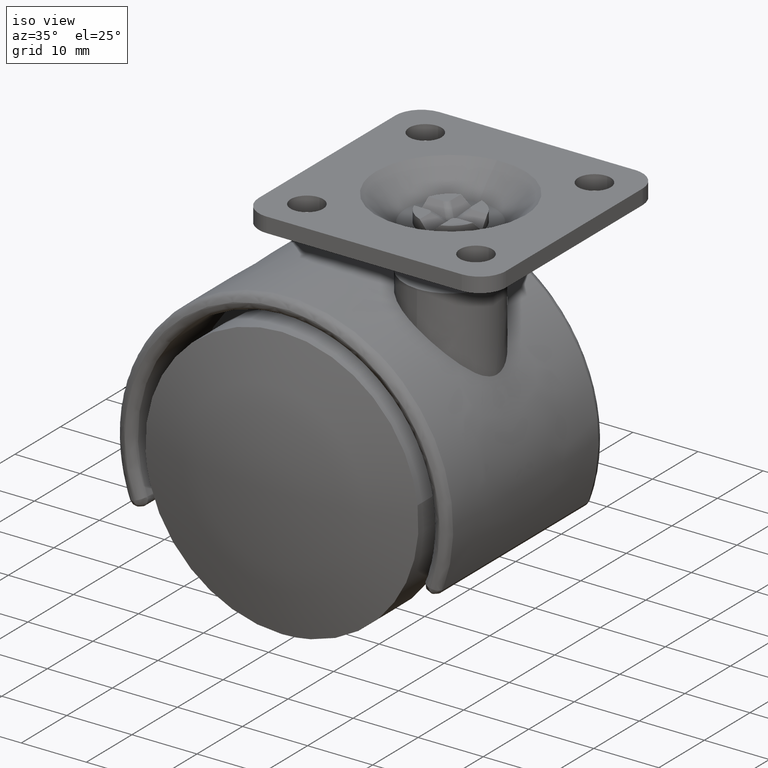
[diagram: clean part render]
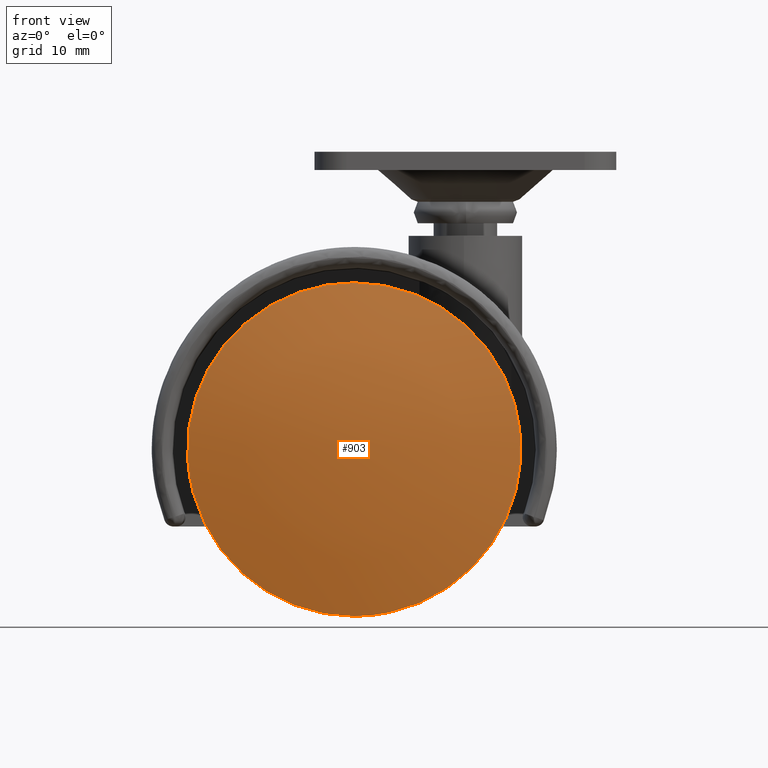
[diagram: tour spotlight — one face highlighted and labeled with its STEP entity id]
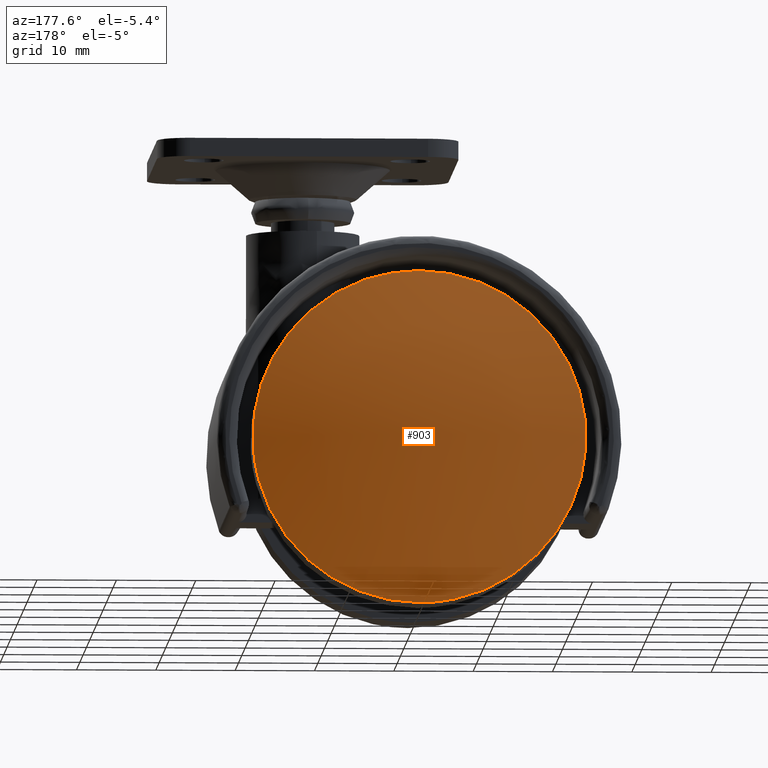
[diagram: tour spotlight — one face highlighted and labeled with its STEP entity id]
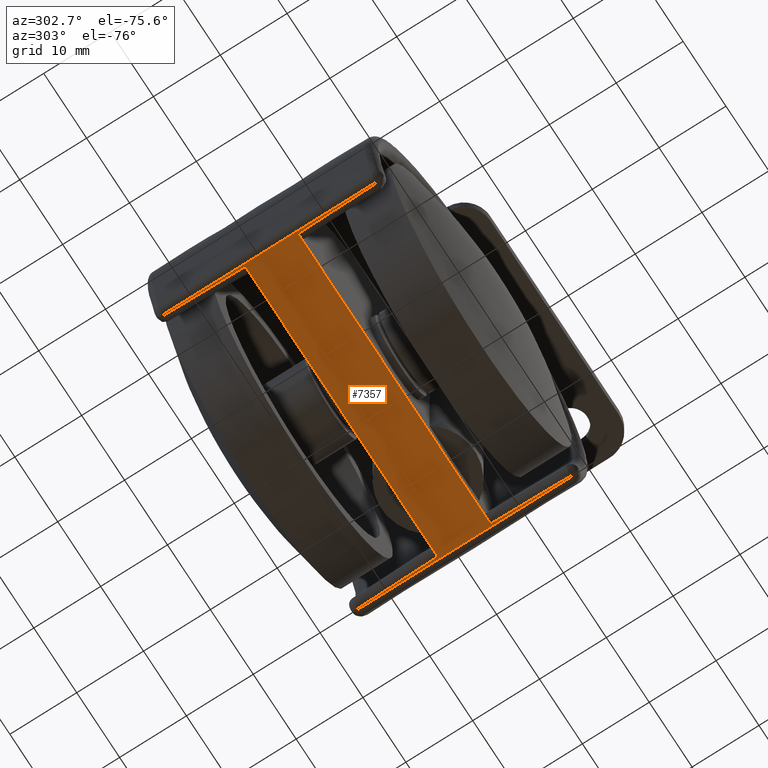
[diagram: tour spotlight — one face highlighted and labeled with its STEP entity id]
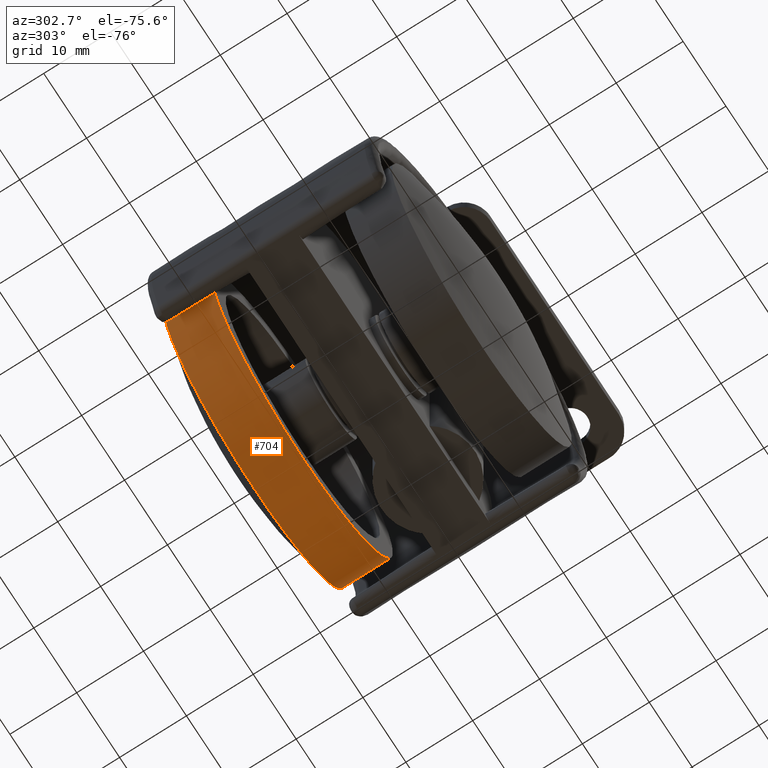
[diagram: tour spotlight — one face highlighted and labeled with its STEP entity id]
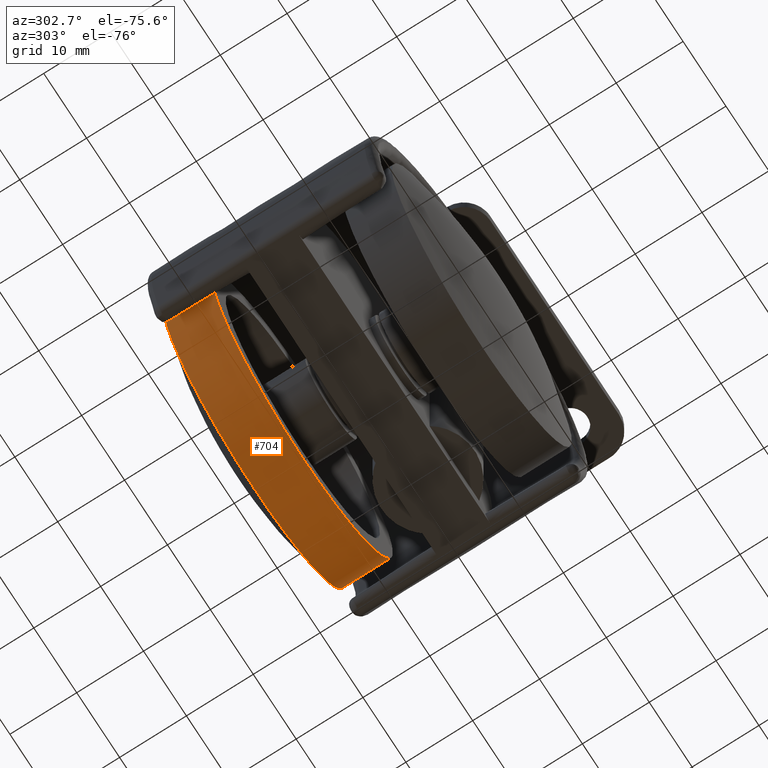
[diagram: tour spotlight — one face highlighted and labeled with its STEP entity id]
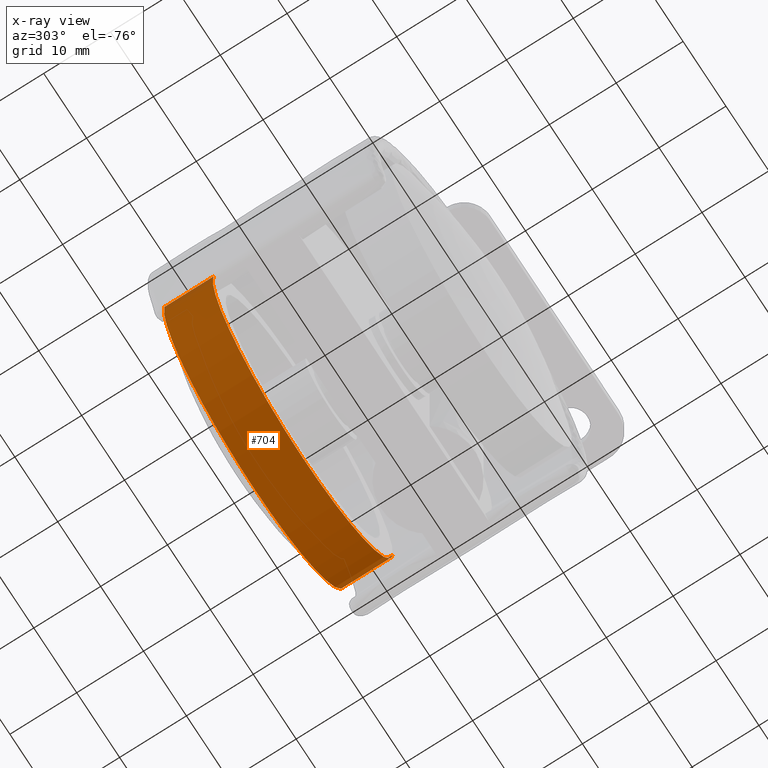
[diagram: x-ray of the same camera — body ghosted, this tour face saturated]
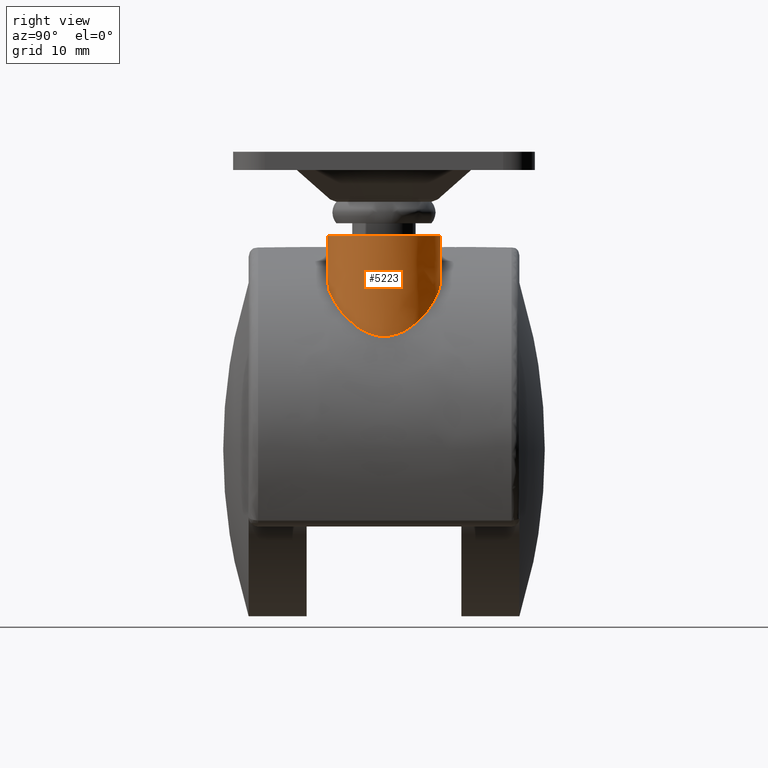
[diagram: tour spotlight — one face highlighted and labeled with its STEP entity id]
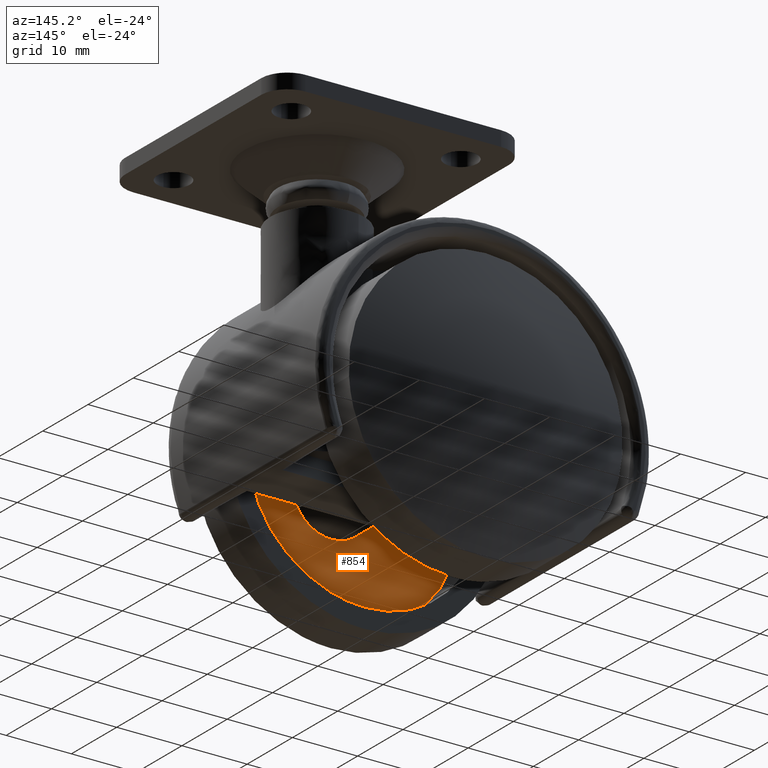
[diagram: tour spotlight — one face highlighted and labeled with its STEP entity id]
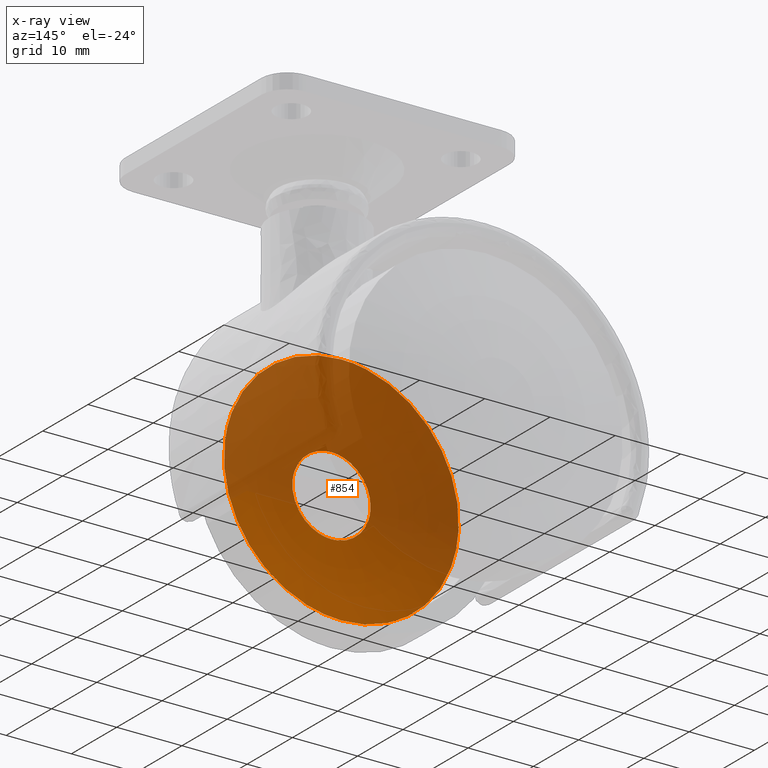
[diagram: x-ray of the same camera — body ghosted, this tour face saturated]
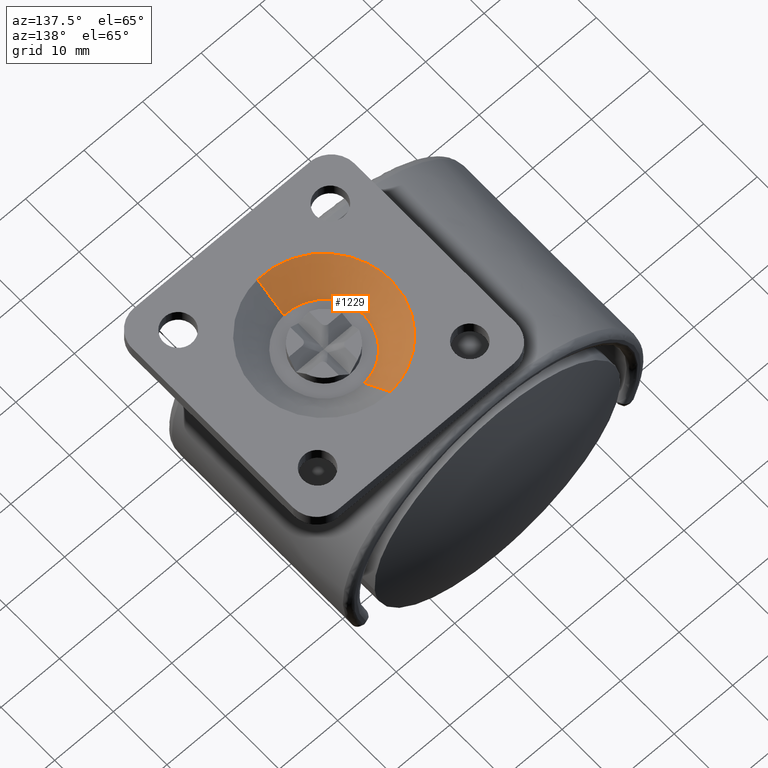
[diagram: tour spotlight — one face highlighted and labeled with its STEP entity id]
A machine part: a face-by-face anatomy tour. The part has 130 B-rep faces; the first image is the clean iso view, then the 8 largest visible faces are spotlighted one at a time (largest first), each with its STEP entity span.

Face 1 — front view, entity #903. In plain terms, the highlighted face is a freeform B-spline surface patch.
Definition (entity closure, byte-faithful):
#643=CARTESIAN_POINT('',(20.853201943632900,-17.050000000000001,2.478703027352907));
#644=VERTEX_POINT('',#643);
#650=CARTESIAN_POINT('',(0.0,-17.050000000000001,-21.0));
#651=VERTEX_POINT('',#650);
#652=CARTESIAN_POINT('',(20.853201943632904,-17.050000000000008,2.478703027352907));
#653=CARTESIAN_POINT('',(21.000000000000007,-17.049999999999997,1.243698478422807));
#654=CARTESIAN_POINT('',(21.0,-17.050000000000001,0.0));
#655=CARTESIAN_POINT('',(21.000000000000007,-17.050000000000008,-21.000000000000007));
#656=CARTESIAN_POINT('',(0.0,-17.050000000000001,-21.0));
#664=(BOUNDED_CURVE()B_SPLINE_CURVE(2,(#652,#653,#654,#655,#656),.UNSPECIFIED.,.F.,.U.)B_SPLINE_CURVE_WITH_KNOTS((3,2,3),(0.229562602379606,0.250000000000000,0.500000000000000),.UNSPECIFIED.)CURVE()GEOMETRIC_REPRESENTATION_ITEM()RATIONAL_B_SPLINE_CURVE((0.956027006766681,0.976056099307170,1.0,0.707106781186547,1.0))REPRESENTATION_ITEM(''));
#665=EDGE_CURVE('',#644,#651,#664,.T.);
#667=CARTESIAN_POINT('',(-20.960832033212970,-17.050000000000001,-1.281998625195331));
#668=VERTEX_POINT('',#667);
#669=CARTESIAN_POINT('',(0.0,-17.050000000000001,-21.0));
#670=CARTESIAN_POINT('',(-19.754846955243273,-17.050000000000001,-21.0));
#671=CARTESIAN_POINT('',(-20.960832033212970,-17.049999999999997,-1.281998625195331));
#679=(BOUNDED_CURVE()B_SPLINE_CURVE(2,(#669,#670,#671),.UNSPECIFIED.,.F.,.U.)B_SPLINE_CURVE_WITH_KNOTS((3,3),(0.500000000000000,0.739333132683117),.UNSPECIFIED.)CURVE()GEOMETRIC_REPRESENTATION_ITEM()RATIONAL_B_SPLINE_CURVE((1.0,0.719603793598940,0.976072406961299))REPRESENTATION_ITEM(''));
#680=EDGE_CURVE('',#651,#668,#679,.T.);
#754=CARTESIAN_POINT('',(0.0,-17.050000000000001,21.0));
#755=VERTEX_POINT('',#754);
#756=CARTESIAN_POINT('',(-20.960832033212970,-17.049999999999997,-1.281998625195331));
#757=CARTESIAN_POINT('',(-21.000000000000004,-17.050000000000004,-0.641597647725365));
#758=CARTESIAN_POINT('',(-21.0,-17.050000000000001,0.0));
#759=CARTESIAN_POINT('',(-21.000000000000007,-17.050000000000008,21.000000000000007));
#760=CARTESIAN_POINT('',(0.0,-17.050000000000001,21.0));
#768=(BOUNDED_CURVE()B_SPLINE_CURVE(2,(#756,#757,#758,#759,#760),.UNSPECIFIED.,.F.,.U.)B_SPLINE_CURVE_WITH_KNOTS((3,2,3),(0.739333132683117,0.750000000000000,1.0),.UNSPECIFIED.)CURVE()GEOMETRIC_REPRESENTATION_ITEM()RATIONAL_B_SPLINE_CURVE((0.976072406961299,0.987502987587608,1.0,0.707106781186547,1.0))REPRESENTATION_ITEM(''));
#769=EDGE_CURVE('',#668,#755,#768,.T.);
#771=CARTESIAN_POINT('',(0.0,-17.050000000000001,21.0));
#772=CARTESIAN_POINT('',(18.651679366881005,-17.049999999999997,20.999999999999996));
#773=CARTESIAN_POINT('',(20.853201943632904,-17.050000000000008,2.478703027352907));
#781=(BOUNDED_CURVE()B_SPLINE_CURVE(2,(#771,#772,#773),.UNSPECIFIED.,.F.,.U.)B_SPLINE_CURVE_WITH_KNOTS((3,3),(0.0,0.229562602379606),.UNSPECIFIED.)CURVE()GEOMETRIC_REPRESENTATION_ITEM()RATIONAL_B_SPLINE_CURVE((1.0,0.731050681879377,0.956027006766681))REPRESENTATION_ITEM(''));
#782=EDGE_CURVE('',#755,#644,#781,.T.);
#873=CARTESIAN_POINT('',(-22.376576410867681,-12.749200742959554,-22.377070716865443));
#874=CARTESIAN_POINT('',(-11.493977828266647,-16.397045765762865,-22.988463468101436));
#875=CARTESIAN_POINT('',(11.494040600958824,-16.397045765762865,-22.988463468101436));
#876=CARTESIAN_POINT('',(22.376692116927035,-12.749161958198069,-22.377064216391350));
#877=CARTESIAN_POINT('',(-22.987983406020216,-16.397211335380305,-11.494245609100686));
#878=CARTESIAN_POINT('',(-11.816855614820980,-20.249999999999972,-11.817116653082490));
#879=CARTESIAN_POINT('',(11.816920150863339,-20.249999999999972,-11.817116653082490));
#880=CARTESIAN_POINT('',(22.988102091111351,-16.397170402190429,-11.494242178821240));
#881=CARTESIAN_POINT('',(-22.987983406020216,-16.397211335380305,11.494245363253251));
#882=CARTESIAN_POINT('',(-11.816855614820980,-20.249999999999972,11.817116400329249));
#883=CARTESIAN_POINT('',(11.816920150863339,-20.249999999999972,11.817116400329249));
#884=CARTESIAN_POINT('',(22.988102091111351,-16.397170402190429,11.494241932973878));
#885=CARTESIAN_POINT('',(-22.376576436326488,-12.749200894861735,22.377070263707463));
#886=CARTESIAN_POINT('',(-11.493977841701160,-16.397045926079084,22.988463003276784));
#887=CARTESIAN_POINT('',(11.494040614393409,-16.397045926079084,22.988463003276784));
#888=CARTESIAN_POINT('',(22.376692142385991,-12.749162110100183,22.377063763233522));
#896=(BOUNDED_SURFACE()B_SPLINE_SURFACE(2,2,((#873,#877,#881,#885),(#874,#878,#882,#886),(#875,#879,#883,#887),(#876,#880,#884,#888)),.UNSPECIFIED.,.F.,.F.,.U.)B_SPLINE_SURFACE_WITH_KNOTS((3,1,3),(3,1,3),(14.292887504100801,37.079166179206652,59.865569298267367),(14.292384147644039,37.079166179206638,59.865947723388672),.UNSPECIFIED.)GEOMETRIC_REPRESENTATION_ITEM()RATIONAL_B_SPLINE_SURFACE(((1.056180838198452,1.028089798579401,1.028089798579401,1.056180836996789),(1.028091039619051,1.0,1.0,1.028091038417387),(1.028091039619051,1.0,1.0,1.028091038417387),(1.056181145016009,1.028090105396958,1.028090105396958,1.056181143814345)))REPRESENTATION_ITEM('')SURFACE());
#897=ORIENTED_EDGE('',*,*,#769,.F.);
#898=ORIENTED_EDGE('',*,*,#680,.F.);
#899=ORIENTED_EDGE('',*,*,#665,.F.);
#900=ORIENTED_EDGE('',*,*,#782,.F.);
#901=EDGE_LOOP('',(#897,#898,#899,#900));
#902=FACE_OUTER_BOUND('',#901,.T.);
#903=ADVANCED_FACE('',(#902),#896,.T.);

Face 2 — auxiliary view, entity #903. In plain terms, the highlighted face is a freeform B-spline surface patch.
Definition (entity closure, byte-faithful):
#643=CARTESIAN_POINT('',(20.853201943632900,-17.050000000000001,2.478703027352907));
#644=VERTEX_POINT('',#643);
#650=CARTESIAN_POINT('',(0.0,-17.050000000000001,-21.0));
#651=VERTEX_POINT('',#650);
#652=CARTESIAN_POINT('',(20.853201943632904,-17.050000000000008,2.478703027352907));
#653=CARTESIAN_POINT('',(21.000000000000007,-17.049999999999997,1.243698478422807));
#654=CARTESIAN_POINT('',(21.0,-17.050000000000001,0.0));
#655=CARTESIAN_POINT('',(21.000000000000007,-17.050000000000008,-21.000000000000007));
#656=CARTESIAN_POINT('',(0.0,-17.050000000000001,-21.0));
#664=(BOUNDED_CURVE()B_SPLINE_CURVE(2,(#652,#653,#654,#655,#656),.UNSPECIFIED.,.F.,.U.)B_SPLINE_CURVE_WITH_KNOTS((3,2,3),(0.229562602379606,0.250000000000000,0.500000000000000),.UNSPECIFIED.)CURVE()GEOMETRIC_REPRESENTATION_ITEM()RATIONAL_B_SPLINE_CURVE((0.956027006766681,0.976056099307170,1.0,0.707106781186547,1.0))REPRESENTATION_ITEM(''));
#665=EDGE_CURVE('',#644,#651,#664,.T.);
#667=CARTESIAN_POINT('',(-20.960832033212970,-17.050000000000001,-1.281998625195331));
#668=VERTEX_POINT('',#667);
#669=CARTESIAN_POINT('',(0.0,-17.050000000000001,-21.0));
#670=CARTESIAN_POINT('',(-19.754846955243273,-17.050000000000001,-21.0));
#671=CARTESIAN_POINT('',(-20.960832033212970,-17.049999999999997,-1.281998625195331));
#679=(BOUNDED_CURVE()B_SPLINE_CURVE(2,(#669,#670,#671),.UNSPECIFIED.,.F.,.U.)B_SPLINE_CURVE_WITH_KNOTS((3,3),(0.500000000000000,0.739333132683117),.UNSPECIFIED.)CURVE()GEOMETRIC_REPRESENTATION_ITEM()RATIONAL_B_SPLINE_CURVE((1.0,0.719603793598940,0.976072406961299))REPRESENTATION_ITEM(''));
#680=EDGE_CURVE('',#651,#668,#679,.T.);
#754=CARTESIAN_POINT('',(0.0,-17.050000000000001,21.0));
#755=VERTEX_POINT('',#754);
#756=CARTESIAN_POINT('',(-20.960832033212970,-17.049999999999997,-1.281998625195331));
#757=CARTESIAN_POINT('',(-21.000000000000004,-17.050000000000004,-0.641597647725365));
#758=CARTESIAN_POINT('',(-21.0,-17.050000000000001,0.0));
#759=CARTESIAN_POINT('',(-21.000000000000007,-17.050000000000008,21.000000000000007));
#760=CARTESIAN_POINT('',(0.0,-17.050000000000001,21.0));
#768=(BOUNDED_CURVE()B_SPLINE_CURVE(2,(#756,#757,#758,#759,#760),.UNSPECIFIED.,.F.,.U.)B_SPLINE_CURVE_WITH_KNOTS((3,2,3),(0.739333132683117,0.750000000000000,1.0),.UNSPECIFIED.)CURVE()GEOMETRIC_REPRESENTATION_ITEM()RATIONAL_B_SPLINE_CURVE((0.976072406961299,0.987502987587608,1.0,0.707106781186547,1.0))REPRESENTATION_ITEM(''));
#769=EDGE_CURVE('',#668,#755,#768,.T.);
#771=CARTESIAN_POINT('',(0.0,-17.050000000000001,21.0));
#772=CARTESIAN_POINT('',(18.651679366881005,-17.049999999999997,20.999999999999996));
#773=CARTESIAN_POINT('',(20.853201943632904,-17.050000000000008,2.478703027352907));
#781=(BOUNDED_CURVE()B_SPLINE_CURVE(2,(#771,#772,#773),.UNSPECIFIED.,.F.,.U.)B_SPLINE_CURVE_WITH_KNOTS((3,3),(0.0,0.229562602379606),.UNSPECIFIED.)CURVE()GEOMETRIC_REPRESENTATION_ITEM()RATIONAL_B_SPLINE_CURVE((1.0,0.731050681879377,0.956027006766681))REPRESENTATION_ITEM(''));
#782=EDGE_CURVE('',#755,#644,#781,.T.);
#873=CARTESIAN_POINT('',(-22.376576410867681,-12.749200742959554,-22.377070716865443));
#874=CARTESIAN_POINT('',(-11.493977828266647,-16.397045765762865,-22.988463468101436));
#875=CARTESIAN_POINT('',(11.494040600958824,-16.397045765762865,-22.988463468101436));
#876=CARTESIAN_POINT('',(22.376692116927035,-12.749161958198069,-22.377064216391350));
#877=CARTESIAN_POINT('',(-22.987983406020216,-16.397211335380305,-11.494245609100686));
#878=CARTESIAN_POINT('',(-11.816855614820980,-20.249999999999972,-11.817116653082490));
#879=CARTESIAN_POINT('',(11.816920150863339,-20.249999999999972,-11.817116653082490));
#880=CARTESIAN_POINT('',(22.988102091111351,-16.397170402190429,-11.494242178821240));
#881=CARTESIAN_POINT('',(-22.987983406020216,-16.397211335380305,11.494245363253251));
#882=CARTESIAN_POINT('',(-11.816855614820980,-20.249999999999972,11.817116400329249));
#883=CARTESIAN_POINT('',(11.816920150863339,-20.249999999999972,11.817116400329249));
#884=CARTESIAN_POINT('',(22.988102091111351,-16.397170402190429,11.494241932973878));
#885=CARTESIAN_POINT('',(-22.376576436326488,-12.749200894861735,22.377070263707463));
#886=CARTESIAN_POINT('',(-11.493977841701160,-16.397045926079084,22.988463003276784));
#887=CARTESIAN_POINT('',(11.494040614393409,-16.397045926079084,22.988463003276784));
#888=CARTESIAN_POINT('',(22.376692142385991,-12.749162110100183,22.377063763233522));
#896=(BOUNDED_SURFACE()B_SPLINE_SURFACE(2,2,((#873,#877,#881,#885),(#874,#878,#882,#886),(#875,#879,#883,#887),(#876,#880,#884,#888)),.UNSPECIFIED.,.F.,.F.,.U.)B_SPLINE_SURFACE_WITH_KNOTS((3,1,3),(3,1,3),(14.292887504100801,37.079166179206652,59.865569298267367),(14.292384147644039,37.079166179206638,59.865947723388672),.UNSPECIFIED.)GEOMETRIC_REPRESENTATION_ITEM()RATIONAL_B_SPLINE_SURFACE(((1.056180838198452,1.028089798579401,1.028089798579401,1.056180836996789),(1.028091039619051,1.0,1.0,1.028091038417387),(1.028091039619051,1.0,1.0,1.028091038417387),(1.056181145016009,1.028090105396958,1.028090105396958,1.056181143814345)))REPRESENTATION_ITEM('')SURFACE());
#897=ORIENTED_EDGE('',*,*,#769,.F.);
#898=ORIENTED_EDGE('',*,*,#680,.F.);
#899=ORIENTED_EDGE('',*,*,#665,.F.);
#900=ORIENTED_EDGE('',*,*,#782,.F.);
#901=EDGE_LOOP('',(#897,#898,#899,#900));
#902=FACE_OUTER_BOUND('',#901,.T.);
#903=ADVANCED_FACE('',(#902),#896,.T.);

Face 3 — auxiliary view, entity #7357. In plain terms, the highlighted face is a freeform B-spline surface patch.
Definition (entity closure, byte-faithful):
#5719=CARTESIAN_POINT('',(-22.629304110273399,16.050000000000001,-9.700000000000001));
#5720=VERTEX_POINT('',#5719);
#5799=CARTESIAN_POINT('',(-22.764886307644950,16.050000000000001,-9.700000000000001));
#5800=VERTEX_POINT('',#5799);
#5822=CARTESIAN_POINT('',(-22.764886307644950,16.050000000000001,-9.700000000000001));
#5823=CARTESIAN_POINT('',(-22.629304110273399,16.050000000000001,-9.700000000000001));
#5824=QUASI_UNIFORM_CURVE('',1,(#5822,#5823),.UNSPECIFIED.,.F.,.U.);
#5825=EDGE_CURVE('',#5800,#5720,#5824,.T.);
#6034=CARTESIAN_POINT('',(22.629304110273399,16.050000000000001,-9.700000000000001));
#6035=VERTEX_POINT('',#6034);
#6199=CARTESIAN_POINT('',(22.764886307644950,16.050000000000001,-9.700000000000001));
#6200=VERTEX_POINT('',#6199);
#6214=CARTESIAN_POINT('',(22.629304110273399,16.050000000000001,-9.700000000000001));
#6215=CARTESIAN_POINT('',(22.764886307644950,16.050000000000001,-9.700000000000001));
#6216=QUASI_UNIFORM_CURVE('',1,(#6214,#6215),.UNSPECIFIED.,.F.,.U.);
#6217=EDGE_CURVE('',#6035,#6200,#6216,.T.);
#6333=CARTESIAN_POINT('',(-22.764886307644950,-15.850000000000000,-9.700000000000001));
#6334=VERTEX_POINT('',#6333);
#6378=CARTESIAN_POINT('',(-22.623648998136350,-15.850000000000000,-9.700000000000001));
#6379=VERTEX_POINT('',#6378);
#6401=CARTESIAN_POINT('',(-22.623648998136350,-15.850000000000000,-9.700000000000001));
#6402=CARTESIAN_POINT('',(-22.764886307644950,-15.850000000000000,-9.700000000000001));
#6403=QUASI_UNIFORM_CURVE('',1,(#6401,#6402),.UNSPECIFIED.,.F.,.U.);
#6404=EDGE_CURVE('',#6379,#6334,#6403,.T.);
#6575=CARTESIAN_POINT('',(22.764886307644950,-15.850000000000000,-9.700000000000001));
#6576=VERTEX_POINT('',#6575);
#6705=CARTESIAN_POINT('',(22.623648998136499,-15.850000000000000,-9.700000000000001));
#6706=VERTEX_POINT('',#6705);
#6720=CARTESIAN_POINT('',(22.764886307644950,-15.850000000000000,-9.700000000000001));
#6721=CARTESIAN_POINT('',(22.623648998136499,-15.850000000000000,-9.700000000000001));
#6722=QUASI_UNIFORM_CURVE('',1,(#6720,#6721),.UNSPECIFIED.,.F.,.U.);
#6723=EDGE_CURVE('',#6576,#6706,#6722,.T.);
#6798=CARTESIAN_POINT('',(22.764886307644950,16.050000000000001,-9.700000000000001));
#6799=CARTESIAN_POINT('',(22.764886307644950,-15.850000000000000,-9.700000000000001));
#6800=QUASI_UNIFORM_CURVE('',1,(#6798,#6799),.UNSPECIFIED.,.F.,.U.);
#6801=EDGE_CURVE('',#6200,#6576,#6800,.T.);
#6837=CARTESIAN_POINT('',(22.412655058395149,3.950000000000000,-9.700000000000001));
#6838=VERTEX_POINT('',#6837);
#6839=CARTESIAN_POINT('',(22.412655058395149,3.950000000000000,-9.700000000000001));
#6840=CARTESIAN_POINT('',(22.442309025660830,7.983991599544396,-9.700000000000001));
#6841=CARTESIAN_POINT('',(22.514582693939172,12.017565677171341,-9.700000000000001));
#6842=CARTESIAN_POINT('',(22.629304110273399,16.050000000000001,-9.700000000000001));
#6843=QUASI_UNIFORM_CURVE('',3,(#6839,#6840,#6841,#6842),.UNSPECIFIED.,.F.,.U.);
#6844=EDGE_CURVE('',#6838,#6035,#6843,.T.);
#6896=CARTESIAN_POINT('',(22.412655058395199,-3.949999999999901,-9.700000000000001));
#6897=VERTEX_POINT('',#6896);
#6898=CARTESIAN_POINT('',(22.623648998136499,-15.850000000000000,-9.700000000000001));
#6899=CARTESIAN_POINT('',(22.512204222843138,-11.884198393631550,-9.700000000000001));
#6900=CARTESIAN_POINT('',(22.441818770246460,-7.917299470113857,-9.700000000000001));
#6901=CARTESIAN_POINT('',(22.412655058395199,-3.949999999999901,-9.700000000000001));
#6902=QUASI_UNIFORM_CURVE('',3,(#6898,#6899,#6900,#6901),.UNSPECIFIED.,.F.,.U.);
#6903=EDGE_CURVE('',#6706,#6897,#6902,.T.);
#6965=CARTESIAN_POINT('',(-22.412655058395050,3.950000000000000,-9.700000000000001));
#6966=VERTEX_POINT('',#6965);
#6967=CARTESIAN_POINT('',(-22.629304110273399,16.050000000000001,-9.700000000000001));
#6968=CARTESIAN_POINT('',(-22.514582693939239,12.017565677171341,-9.700000000000001));
#6969=CARTESIAN_POINT('',(-22.442309025660780,7.983991599544396,-9.700000000000001));
#6970=CARTESIAN_POINT('',(-22.412655058395099,3.950000000000000,-9.700000000000001));
#6971=QUASI_UNIFORM_CURVE('',3,(#6967,#6968,#6969,#6970),.UNSPECIFIED.,.F.,.U.);
#6972=EDGE_CURVE('',#5720,#6966,#6971,.T.);
#7028=CARTESIAN_POINT('',(-22.764886307644950,-15.850000000000000,-9.700000000000001));
#7029=CARTESIAN_POINT('',(-22.764886307644950,16.050000000000001,-9.700000000000001));
#7030=QUASI_UNIFORM_CURVE('',1,(#7028,#7029),.UNSPECIFIED.,.F.,.U.);
#7031=EDGE_CURVE('',#6334,#5800,#7030,.T.);
#7073=CARTESIAN_POINT('',(-22.412655058395149,-3.949999999999901,-9.700000000000001));
#7074=VERTEX_POINT('',#7073);
#7075=CARTESIAN_POINT('',(-22.412655058395149,-3.949999999999901,-9.700000000000001));
#7076=CARTESIAN_POINT('',(-22.441818770246510,-7.917299470113855,-9.700000000000001));
#7077=CARTESIAN_POINT('',(-22.512204222843209,-11.884198393631539,-9.700000000000001));
#7078=CARTESIAN_POINT('',(-22.623648998136350,-15.850000000000000,-9.700000000000001));
#7079=QUASI_UNIFORM_CURVE('',3,(#7075,#7076,#7077,#7078),.UNSPECIFIED.,.F.,.U.);
#7080=EDGE_CURVE('',#7074,#6379,#7079,.T.);
#7184=CARTESIAN_POINT('',(-22.412655058395050,3.950000000000000,-9.700000000000001));
#7185=CARTESIAN_POINT('',(22.412655058395149,3.950000000000000,-9.700000000000001));
#7186=QUASI_UNIFORM_CURVE('',1,(#7184,#7185),.UNSPECIFIED.,.F.,.U.);
#7187=EDGE_CURVE('',#6966,#6838,#7186,.T.);
#7224=CARTESIAN_POINT('',(22.412655058395199,-3.949999999999901,-9.700000000000001));
#7225=CARTESIAN_POINT('',(-22.412655058395149,-3.949999999999901,-9.700000000000001));
#7226=QUASI_UNIFORM_CURVE('',1,(#7224,#7225),.UNSPECIFIED.,.F.,.U.);
#7227=EDGE_CURVE('',#6897,#7074,#7226,.T.);
#7338=CARTESIAN_POINT('',(25.039099216335011,-17.443405423111159,-9.700000000000001));
#7339=CARTESIAN_POINT('',(-25.039099623402890,-17.443405423111159,-9.700000000000001));
#7340=CARTESIAN_POINT('',(25.039099216335011,17.643403426653570,-9.700000000000001));
#7341=CARTESIAN_POINT('',(-25.039099623402890,17.643403426653570,-9.700000000000001));
#7342=B_SPLINE_SURFACE_WITH_KNOTS('',1,1,((#7338,#7340),(#7339,#7341)),.UNSPECIFIED.,.F.,.F.,.U.,(2,2),(2,2),(0.0,50.078198839737901),(0.0,35.086808849764729),.UNSPECIFIED.);
#7343=ORIENTED_EDGE('',*,*,#6801,.T.);
#7344=ORIENTED_EDGE('',*,*,#6723,.T.);
#7345=ORIENTED_EDGE('',*,*,#6903,.T.);
#7346=ORIENTED_EDGE('',*,*,#7227,.T.);
#7347=ORIENTED_EDGE('',*,*,#7080,.T.);
#7348=ORIENTED_EDGE('',*,*,#6404,.T.);
#7349=ORIENTED_EDGE('',*,*,#7031,.T.);
#7350=ORIENTED_EDGE('',*,*,#5825,.T.);
#7351=ORIENTED_EDGE('',*,*,#6972,.T.);
#7352=ORIENTED_EDGE('',*,*,#7187,.T.);
#7353=ORIENTED_EDGE('',*,*,#6844,.T.);
#7354=ORIENTED_EDGE('',*,*,#6217,.T.);
#7355=EDGE_LOOP('',(#7343,#7344,#7345,#7346,#7347,#7348,#7349,#7350,#7351,#7352,#7353,#7354));
#7356=FACE_OUTER_BOUND('',#7355,.T.);
#7357=ADVANCED_FACE('',(#7356),#7342,.T.);

Face 4 — auxiliary view, entity #704. In plain terms, the highlighted face is a freeform B-spline surface patch.
Definition (entity closure, byte-faithful):
#602=CARTESIAN_POINT('',(20.853200053636993,-17.232500000000009,2.478718927791928));
#603=CARTESIAN_POINT('',(20.924139924420714,-17.232500000000012,1.881909301397531));
#604=CARTESIAN_POINT('',(20.960830766859200,-17.232500000000009,1.282019330231997));
#605=CARTESIAN_POINT('',(22.242850097091193,-17.232500000000012,-19.678811436627200));
#606=CARTESIAN_POINT('',(1.282019330231997,-17.232500000000009,-20.960830766859200));
#607=CARTESIAN_POINT('',(-19.678811436627200,-17.232500000000012,-22.242850097091193));
#608=CARTESIAN_POINT('',(-20.960830766859200,-17.232500000000009,-1.282019330231997));
#609=CARTESIAN_POINT('',(20.853200053636993,-9.562937499999999,2.478718927791928));
#610=CARTESIAN_POINT('',(20.924139924420714,-9.562937499999999,1.881909301397531));
#611=CARTESIAN_POINT('',(20.960830766859200,-9.562937499999999,1.282019330231997));
#612=CARTESIAN_POINT('',(22.242850097091193,-9.562937499999999,-19.678811436627200));
#613=CARTESIAN_POINT('',(1.282019330231997,-9.562937499999999,-20.960830766859200));
#614=CARTESIAN_POINT('',(-19.678811436627200,-9.562937499999999,-22.242850097091193));
#615=CARTESIAN_POINT('',(-20.960830766859200,-9.562937499999999,-1.282019330231997));
#623=(BOUNDED_SURFACE()B_SPLINE_SURFACE(2,1,((#602,#609),(#603,#610),(#604,#611),(#605,#612),(#606,#613),(#607,#614),(#608,#615)),.UNSPECIFIED.,.F.,.F.,.U.)B_SPLINE_SURFACE_WITH_KNOTS((3,2,2,3),(2,2),(0.0,1.391757569573601,36.185696808913569,70.979636048253539),(0.0,7.669562500000013),.UNSPECIFIED.)GEOMETRIC_REPRESENTATION_ITEM()RATIONAL_B_SPLINE_SURFACE(((0.977505800795127,0.977505800795127),(0.988284271247462,0.988284271247462),(1.0,1.0),(0.707106781186548,0.707106781186548),(1.0,1.0),(0.707106781186548,0.707106781186548),(1.0,1.0)))REPRESENTATION_ITEM('')SURFACE());
#624=CARTESIAN_POINT('',(20.853201967231360,-9.750000000000146,2.478702828818913));
#625=VERTEX_POINT('',#624);
#626=CARTESIAN_POINT('',(0.0,-9.750000000000000,-21.0));
#627=VERTEX_POINT('',#626);
#628=CARTESIAN_POINT('',(20.853201967231367,-9.750000000000146,2.478702828818913));
#629=CARTESIAN_POINT('',(20.999999999999996,-9.750000000000000,1.243698378106394));
#630=CARTESIAN_POINT('',(21.0,-9.750000000000000,0.0));
#631=CARTESIAN_POINT('',(21.000000000000007,-9.750000000000000,-21.000000000000007));
#632=CARTESIAN_POINT('',(0.0,-9.750000000000000,-21.0));
#640=(BOUNDED_CURVE()B_SPLINE_CURVE(2,(#628,#629,#630,#631,#632),.UNSPECIFIED.,.F.,.U.)B_SPLINE_CURVE_WITH_KNOTS((3,2,3),(0.229562603988611,0.250000000000000,0.500000000000000),.UNSPECIFIED.)CURVE()GEOMETRIC_REPRESENTATION_ITEM()RATIONAL_B_SPLINE_CURVE((0.956027009920400,0.976056101192236,1.0,0.707106781186547,1.0))REPRESENTATION_ITEM(''));
#641=EDGE_CURVE('',#625,#627,#640,.T.);
#642=ORIENTED_EDGE('',*,*,#641,.F.);
#643=CARTESIAN_POINT('',(20.853201943632900,-17.050000000000001,2.478703027352907));
#644=VERTEX_POINT('',#643);
#645=CARTESIAN_POINT('',(20.853201943632900,-17.050000000000001,2.478703027352907));
#646=CARTESIAN_POINT('',(20.853201967231360,-9.750000000000146,2.478702828818913));
#647=QUASI_UNIFORM_CURVE('',1,(#645,#646),.UNSPECIFIED.,.F.,.U.);
#648=EDGE_CURVE('',#644,#625,#647,.T.);
#649=ORIENTED_EDGE('',*,*,#648,.F.);
#650=CARTESIAN_POINT('',(0.0,-17.050000000000001,-21.0));
#651=VERTEX_POINT('',#650);
#652=CARTESIAN_POINT('',(20.853201943632904,-17.050000000000008,2.478703027352907));
#653=CARTESIAN_POINT('',(21.000000000000007,-17.049999999999997,1.243698478422807));
#654=CARTESIAN_POINT('',(21.0,-17.050000000000001,0.0));
#655=CARTESIAN_POINT('',(21.000000000000007,-17.050000000000008,-21.000000000000007));
#656=CARTESIAN_POINT('',(0.0,-17.050000000000001,-21.0));
#664=(BOUNDED_CURVE()B_SPLINE_CURVE(2,(#652,#653,#654,#655,#656),.UNSPECIFIED.,.F.,.U.)B_SPLINE_CURVE_WITH_KNOTS((3,2,3),(0.229562602379606,0.250000000000000,0.500000000000000),.UNSPECIFIED.)CURVE()GEOMETRIC_REPRESENTATION_ITEM()RATIONAL_B_SPLINE_CURVE((0.956027006766681,0.976056099307170,1.0,0.707106781186547,1.0))REPRESENTATION_ITEM(''));
#665=EDGE_CURVE('',#644,#651,#664,.T.);
#666=ORIENTED_EDGE('',*,*,#665,.T.);
#667=CARTESIAN_POINT('',(-20.960832033212970,-17.050000000000001,-1.281998625195331));
#668=VERTEX_POINT('',#667);
#669=CARTESIAN_POINT('',(0.0,-17.050000000000001,-21.0));
#670=CARTESIAN_POINT('',(-19.754846955243273,-17.050000000000001,-21.0));
#671=CARTESIAN_POINT('',(-20.960832033212970,-17.049999999999997,-1.281998625195331));
#679=(BOUNDED_CURVE()B_SPLINE_CURVE(2,(#669,#670,#671),.UNSPECIFIED.,.F.,.U.)B_SPLINE_CURVE_WITH_KNOTS((3,3),(0.500000000000000,0.739333132683117),.UNSPECIFIED.)CURVE()GEOMETRIC_REPRESENTATION_ITEM()RATIONAL_B_SPLINE_CURVE((1.0,0.719603793598940,0.976072406961299))REPRESENTATION_ITEM(''));
#680=EDGE_CURVE('',#651,#668,#679,.T.);
#681=ORIENTED_EDGE('',*,*,#680,.T.);
#682=CARTESIAN_POINT('',(-20.960832049034071,-9.749999999999961,-1.281998366514052));
#683=VERTEX_POINT('',#682);
#684=CARTESIAN_POINT('',(-20.960832033212970,-17.050000000000001,-1.281998625195331));
#685=CARTESIAN_POINT('',(-20.960832049034071,-9.749999999999961,-1.281998366514052));
#686=QUASI_UNIFORM_CURVE('',1,(#684,#685),.UNSPECIFIED.,.F.,.U.);
#687=EDGE_CURVE('',#668,#683,#686,.T.);
#688=ORIENTED_EDGE('',*,*,#687,.T.);
#689=CARTESIAN_POINT('',(0.0,-9.750000000000000,-21.0));
#690=CARTESIAN_POINT('',(-19.754847199496840,-9.750000000000000,-20.999999999999996));
#691=CARTESIAN_POINT('',(-20.960832049034078,-9.749999999999961,-1.281998366514052));
#699=(BOUNDED_CURVE()B_SPLINE_CURVE(2,(#689,#690,#691),.UNSPECIFIED.,.F.,.U.)B_SPLINE_CURVE_WITH_KNOTS((3,3),(0.500000000000000,0.739333134812547),.UNSPECIFIED.)CURVE()GEOMETRIC_REPRESENTATION_ITEM()RATIONAL_B_SPLINE_CURVE((1.0,0.719603791104156,0.976072411525082))REPRESENTATION_ITEM(''));
#700=EDGE_CURVE('',#627,#683,#699,.T.);
#701=ORIENTED_EDGE('',*,*,#700,.F.);
#702=EDGE_LOOP('',(#642,#649,#666,#681,#688,#701));
#703=FACE_OUTER_BOUND('',#702,.T.);
#704=ADVANCED_FACE('',(#703),#623,.T.);

Face 5 — auxiliary view, entity #704. An x-ray twin of the same camera follows (body ghosted, this face saturated) — the face is partly hidden behind the body. In plain terms, the highlighted face is a freeform B-spline surface patch.
Definition (entity closure, byte-faithful):
#602=CARTESIAN_POINT('',(20.853200053636993,-17.232500000000009,2.478718927791928));
#603=CARTESIAN_POINT('',(20.924139924420714,-17.232500000000012,1.881909301397531));
#604=CARTESIAN_POINT('',(20.960830766859200,-17.232500000000009,1.282019330231997));
#605=CARTESIAN_POINT('',(22.242850097091193,-17.232500000000012,-19.678811436627200));
#606=CARTESIAN_POINT('',(1.282019330231997,-17.232500000000009,-20.960830766859200));
#607=CARTESIAN_POINT('',(-19.678811436627200,-17.232500000000012,-22.242850097091193));
#608=CARTESIAN_POINT('',(-20.960830766859200,-17.232500000000009,-1.282019330231997));
#609=CARTESIAN_POINT('',(20.853200053636993,-9.562937499999999,2.478718927791928));
#610=CARTESIAN_POINT('',(20.924139924420714,-9.562937499999999,1.881909301397531));
#611=CARTESIAN_POINT('',(20.960830766859200,-9.562937499999999,1.282019330231997));
#612=CARTESIAN_POINT('',(22.242850097091193,-9.562937499999999,-19.678811436627200));
#613=CARTESIAN_POINT('',(1.282019330231997,-9.562937499999999,-20.960830766859200));
#614=CARTESIAN_POINT('',(-19.678811436627200,-9.562937499999999,-22.242850097091193));
#615=CARTESIAN_POINT('',(-20.960830766859200,-9.562937499999999,-1.282019330231997));
#623=(BOUNDED_SURFACE()B_SPLINE_SURFACE(2,1,((#602,#609),(#603,#610),(#604,#611),(#605,#612),(#606,#613),(#607,#614),(#608,#615)),.UNSPECIFIED.,.F.,.F.,.U.)B_SPLINE_SURFACE_WITH_KNOTS((3,2,2,3),(2,2),(0.0,1.391757569573601,36.185696808913569,70.979636048253539),(0.0,7.669562500000013),.UNSPECIFIED.)GEOMETRIC_REPRESENTATION_ITEM()RATIONAL_B_SPLINE_SURFACE(((0.977505800795127,0.977505800795127),(0.988284271247462,0.988284271247462),(1.0,1.0),(0.707106781186548,0.707106781186548),(1.0,1.0),(0.707106781186548,0.707106781186548),(1.0,1.0)))REPRESENTATION_ITEM('')SURFACE());
#624=CARTESIAN_POINT('',(20.853201967231360,-9.750000000000146,2.478702828818913));
#625=VERTEX_POINT('',#624);
#626=CARTESIAN_POINT('',(0.0,-9.750000000000000,-21.0));
#627=VERTEX_POINT('',#626);
#628=CARTESIAN_POINT('',(20.853201967231367,-9.750000000000146,2.478702828818913));
#629=CARTESIAN_POINT('',(20.999999999999996,-9.750000000000000,1.243698378106394));
#630=CARTESIAN_POINT('',(21.0,-9.750000000000000,0.0));
#631=CARTESIAN_POINT('',(21.000000000000007,-9.750000000000000,-21.000000000000007));
#632=CARTESIAN_POINT('',(0.0,-9.750000000000000,-21.0));
#640=(BOUNDED_CURVE()B_SPLINE_CURVE(2,(#628,#629,#630,#631,#632),.UNSPECIFIED.,.F.,.U.)B_SPLINE_CURVE_WITH_KNOTS((3,2,3),(0.229562603988611,0.250000000000000,0.500000000000000),.UNSPECIFIED.)CURVE()GEOMETRIC_REPRESENTATION_ITEM()RATIONAL_B_SPLINE_CURVE((0.956027009920400,0.976056101192236,1.0,0.707106781186547,1.0))REPRESENTATION_ITEM(''));
#641=EDGE_CURVE('',#625,#627,#640,.T.);
#642=ORIENTED_EDGE('',*,*,#641,.F.);
#643=CARTESIAN_POINT('',(20.853201943632900,-17.050000000000001,2.478703027352907));
#644=VERTEX_POINT('',#643);
#645=CARTESIAN_POINT('',(20.853201943632900,-17.050000000000001,2.478703027352907));
#646=CARTESIAN_POINT('',(20.853201967231360,-9.750000000000146,2.478702828818913));
#647=QUASI_UNIFORM_CURVE('',1,(#645,#646),.UNSPECIFIED.,.F.,.U.);
#648=EDGE_CURVE('',#644,#625,#647,.T.);
#649=ORIENTED_EDGE('',*,*,#648,.F.);
#650=CARTESIAN_POINT('',(0.0,-17.050000000000001,-21.0));
#651=VERTEX_POINT('',#650);
#652=CARTESIAN_POINT('',(20.853201943632904,-17.050000000000008,2.478703027352907));
#653=CARTESIAN_POINT('',(21.000000000000007,-17.049999999999997,1.243698478422807));
#654=CARTESIAN_POINT('',(21.0,-17.050000000000001,0.0));
#655=CARTESIAN_POINT('',(21.000000000000007,-17.050000000000008,-21.000000000000007));
#656=CARTESIAN_POINT('',(0.0,-17.050000000000001,-21.0));
#664=(BOUNDED_CURVE()B_SPLINE_CURVE(2,(#652,#653,#654,#655,#656),.UNSPECIFIED.,.F.,.U.)B_SPLINE_CURVE_WITH_KNOTS((3,2,3),(0.229562602379606,0.250000000000000,0.500000000000000),.UNSPECIFIED.)CURVE()GEOMETRIC_REPRESENTATION_ITEM()RATIONAL_B_SPLINE_CURVE((0.956027006766681,0.976056099307170,1.0,0.707106781186547,1.0))REPRESENTATION_ITEM(''));
#665=EDGE_CURVE('',#644,#651,#664,.T.);
#666=ORIENTED_EDGE('',*,*,#665,.T.);
#667=CARTESIAN_POINT('',(-20.960832033212970,-17.050000000000001,-1.281998625195331));
#668=VERTEX_POINT('',#667);
#669=CARTESIAN_POINT('',(0.0,-17.050000000000001,-21.0));
#670=CARTESIAN_POINT('',(-19.754846955243273,-17.050000000000001,-21.0));
#671=CARTESIAN_POINT('',(-20.960832033212970,-17.049999999999997,-1.281998625195331));
#679=(BOUNDED_CURVE()B_SPLINE_CURVE(2,(#669,#670,#671),.UNSPECIFIED.,.F.,.U.)B_SPLINE_CURVE_WITH_KNOTS((3,3),(0.500000000000000,0.739333132683117),.UNSPECIFIED.)CURVE()GEOMETRIC_REPRESENTATION_ITEM()RATIONAL_B_SPLINE_CURVE((1.0,0.719603793598940,0.976072406961299))REPRESENTATION_ITEM(''));
#680=EDGE_CURVE('',#651,#668,#679,.T.);
#681=ORIENTED_EDGE('',*,*,#680,.T.);
#682=CARTESIAN_POINT('',(-20.960832049034071,-9.749999999999961,-1.281998366514052));
#683=VERTEX_POINT('',#682);
#684=CARTESIAN_POINT('',(-20.960832033212970,-17.050000000000001,-1.281998625195331));
#685=CARTESIAN_POINT('',(-20.960832049034071,-9.749999999999961,-1.281998366514052));
#686=QUASI_UNIFORM_CURVE('',1,(#684,#685),.UNSPECIFIED.,.F.,.U.);
#687=EDGE_CURVE('',#668,#683,#686,.T.);
#688=ORIENTED_EDGE('',*,*,#687,.T.);
#689=CARTESIAN_POINT('',(0.0,-9.750000000000000,-21.0));
#690=CARTESIAN_POINT('',(-19.754847199496840,-9.750000000000000,-20.999999999999996));
#691=CARTESIAN_POINT('',(-20.960832049034078,-9.749999999999961,-1.281998366514052));
#699=(BOUNDED_CURVE()B_SPLINE_CURVE(2,(#689,#690,#691),.UNSPECIFIED.,.F.,.U.)B_SPLINE_CURVE_WITH_KNOTS((3,3),(0.500000000000000,0.739333134812547),.UNSPECIFIED.)CURVE()GEOMETRIC_REPRESENTATION_ITEM()RATIONAL_B_SPLINE_CURVE((1.0,0.719603791104156,0.976072411525082))REPRESENTATION_ITEM(''));
#700=EDGE_CURVE('',#627,#683,#699,.T.);
#701=ORIENTED_EDGE('',*,*,#700,.F.);
#702=EDGE_LOOP('',(#642,#649,#666,#681,#688,#701));
#703=FACE_OUTER_BOUND('',#702,.T.);
#704=ADVANCED_FACE('',(#703),#623,.T.);

Face 6 — right view, entity #5223. In plain terms, the highlighted face is a freeform B-spline surface patch.
Definition (entity closure, byte-faithful):
#5047=CARTESIAN_POINT('',(12.508713685896483,6.992751325087095,27.216366923734558));
#5048=CARTESIAN_POINT('',(13.338751162601820,7.169766324131608,27.216366923734565));
#5049=CARTESIAN_POINT('',(14.187163180401400,7.147549873575152,27.216366923734569));
#5050=CARTESIAN_POINT('',(21.334713053976543,6.960384693173860,27.216366923734569));
#5051=CARTESIAN_POINT('',(21.147547873575249,-0.187165180401294,27.216366923734569));
#5052=CARTESIAN_POINT('',(20.960382693173962,-7.334715053976446,27.216366923734569));
#5053=CARTESIAN_POINT('',(13.812832819598810,-7.147549873575152,27.216366923734569));
#5054=CARTESIAN_POINT('',(12.508713685896483,6.992751325087095,13.921046953789494));
#5055=CARTESIAN_POINT('',(13.338751162601820,7.169766324131608,13.921046953789498));
#5056=CARTESIAN_POINT('',(14.187163180401400,7.147549873575152,13.921046953789491));
#5057=CARTESIAN_POINT('',(21.334713053976543,6.960384693173860,13.921046953789494));
#5058=CARTESIAN_POINT('',(21.147547873575249,-0.187165180401294,13.921046953789491));
#5059=CARTESIAN_POINT('',(20.960382693173962,-7.334715053976446,13.921046953789494));
#5060=CARTESIAN_POINT('',(13.812832819598810,-7.147549873575152,13.921046953789491));
#5068=(BOUNDED_SURFACE()B_SPLINE_SURFACE(2,1,((#5047,#5054),(#5048,#5055),(#5049,#5056),(#5050,#5057),(#5051,#5058),(#5052,#5059),(#5053,#5060)),.UNSPECIFIED.,.F.,.F.,.U.)B_SPLINE_SURFACE_WITH_KNOTS((3,2,2,3),(2,2),(0.0,1.895441261419260,13.741949145289640,25.588457029160029),(0.0,13.295319969945069),.UNSPECIFIED.)GEOMETRIC_REPRESENTATION_ITEM()RATIONAL_B_SPLINE_SURFACE(((0.921270302782944,0.921270302782944),(0.953137084989848,0.953137084989848),(1.0,1.0),(0.707106781186548,0.707106781186548),(1.0,1.0),(0.707106781186548,0.707106781186548),(1.0,1.0)))REPRESENTATION_ITEM('')SURFACE());
#5069=CARTESIAN_POINT('',(12.508713685865210,6.992751325080427,26.899999999999999));
#5070=VERTEX_POINT('',#5069);
#5071=CARTESIAN_POINT('',(21.149998000000021,0.0,26.899999999999999));
#5072=VERTEX_POINT('',#5071);
#5073=CARTESIAN_POINT('',(12.508713685865214,6.992751325080427,26.899999999999991));
#5074=CARTESIAN_POINT('',(13.246065289086630,7.149999999999920,26.900000000000002));
#5075=CARTESIAN_POINT('',(13.999998000000099,7.149999999999920,26.899999999999999));
#5076=CARTESIAN_POINT('',(21.149998000000028,7.149999999999920,26.900000000000002));
#5077=CARTESIAN_POINT('',(21.149998000000021,0.0,26.899999999999999));
#5085=(BOUNDED_CURVE()B_SPLINE_CURVE(2,(#5073,#5074,#5075,#5076,#5077),.UNSPECIFIED.,.F.,.U.)B_SPLINE_CURVE_WITH_KNOTS((3,2,3),(0.214279665298070,0.250000000000000,0.500000000000000),.UNSPECIFIED.)CURVE()GEOMETRIC_REPRESENTATION_ITEM()RATIONAL_B_SPLINE_CURVE((0.928260924754156,0.958151024768232,1.0,0.707106781186548,1.0))REPRESENTATION_ITEM(''));
#5086=EDGE_CURVE('',#5070,#5072,#5085,.T.);
#5087=ORIENTED_EDGE('',*,*,#5086,.T.);
#5088=CARTESIAN_POINT('',(13.812832819528991,-7.147549873573325,26.899999999999999));
#5089=VERTEX_POINT('',#5088);
#5090=CARTESIAN_POINT('',(21.149998000000021,0.0,26.899999999999999));
#5091=CARTESIAN_POINT('',(21.149998000000028,-7.149999999999920,26.900000000000002));
#5092=CARTESIAN_POINT('',(13.999998000000099,-7.149999999999920,26.899999999999999));
#5093=CARTESIAN_POINT('',(13.906399372773658,-7.149999999999920,26.900000000000002));
#5094=CARTESIAN_POINT('',(13.812832819528994,-7.147549873573325,26.899999999999999));
#5102=(BOUNDED_CURVE()B_SPLINE_CURVE(2,(#5090,#5091,#5092,#5093,#5094),.UNSPECIFIED.,.F.,.U.)B_SPLINE_CURVE_WITH_KNOTS((3,2,3),(0.500000000000000,0.750000000000000,0.754603306662422),.UNSPECIFIED.)CURVE()GEOMETRIC_REPRESENTATION_ITEM()RATIONAL_B_SPLINE_CURVE((1.0,0.707106781186548,1.0,0.994606890777831,0.989412390640571))REPRESENTATION_ITEM(''));
#5103=EDGE_CURVE('',#5072,#5089,#5102,.T.);
#5104=ORIENTED_EDGE('',*,*,#5103,.T.);
#5105=CARTESIAN_POINT('',(13.812833339563380,-7.147551230877988,21.434915330539351));
#5106=VERTEX_POINT('',#5105);
#5107=CARTESIAN_POINT('',(13.812832819528991,-7.147549873573325,26.899999999999999));
#5108=CARTESIAN_POINT('',(13.812833339563380,-7.147551230877988,21.434915330539351));
#5109=QUASI_UNIFORM_CURVE('',1,(#5107,#5108),.UNSPECIFIED.,.F.,.U.);
#5110=EDGE_CURVE('',#5089,#5106,#5109,.T.);
#5111=ORIENTED_EDGE('',*,*,#5110,.T.);
#5112=CARTESIAN_POINT('',(21.149960335271292,0.023207847857796,14.245323050617420));
#5113=VERTEX_POINT('',#5112);
#5114=CARTESIAN_POINT('',(13.812833339563380,-7.147551230877988,21.434915330539351));
#5115=CARTESIAN_POINT('',(13.879564070862690,-7.149297595971949,21.391913478655219));
#5116=CARTESIAN_POINT('',(13.946207466968200,-7.150106056032846,21.348526868249660));
#5117=CARTESIAN_POINT('',(14.123821049942579,-7.149789016803292,21.231705240151541));
#5118=CARTESIAN_POINT('',(14.234222106320161,-7.147000121688222,21.157844418165020));
#5119=CARTESIAN_POINT('',(14.452976484142170,-7.136475469922057,21.009020249680759));
#5120=CARTESIAN_POINT('',(14.561451742546350,-7.128739664458077,20.933976855028789));
#5121=CARTESIAN_POINT('',(15.099426424440439,-7.078177779470718,20.555634884476429));
#5122=CARTESIAN_POINT('',(15.515770881715239,-7.000010606631387,20.242956248875551));
#5123=CARTESIAN_POINT('',(16.019835262603650,-6.859569312798783,19.840148837541172));
#5124=CARTESIAN_POINT('',(16.119826867528658,-6.829325898735448,19.758989765039559));
#5125=CARTESIAN_POINT('',(16.318185868314540,-6.764567388251190,19.595491999550529));
#5126=CARTESIAN_POINT('',(16.416684813122728,-6.729997442728252,19.513038648898149));
#5127=CARTESIAN_POINT('',(16.707990475542019,-6.620596185193850,19.265461133628051));
#5128=CARTESIAN_POINT('',(16.897073273386940,-6.539964677805201,19.099751058486142));
#5129=CARTESIAN_POINT('',(17.449883302238401,-6.275952215885887,18.601019644092201));
#5130=CARTESIAN_POINT('',(17.799250083095011,-6.070684792148294,18.266336937788989));
#5131=CARTESIAN_POINT('',(18.296643504884020,-5.718617425150768,17.763401413682679));
#5132=CARTESIAN_POINT('',(18.457978581937230,-5.593845359457442,17.595617275116009));
#5133=CARTESIAN_POINT('',(18.693365697466540,-5.394936511041605,17.344199702157081));
#5134=CARTESIAN_POINT('',(18.770759571810430,-5.326626412089322,17.260395409844271));
#5135=CARTESIAN_POINT('',(18.922339569655890,-5.186874678114267,17.094084703831442));
#5136=CARTESIAN_POINT('',(18.996654510205410,-5.115328701703587,17.011442333020621));
#5137=CARTESIAN_POINT('',(19.215233865647519,-4.895559704147123,16.765231154095439));
#5138=CARTESIAN_POINT('',(19.355143662083481,-4.742228009134109,16.603363889586969));
#5139=CARTESIAN_POINT('',(19.623415639153439,-4.420801592696879,16.285418055952881));
#5140=CARTESIAN_POINT('',(19.751781295843418,-4.252717057816176,16.129331714898498));
#5141=CARTESIAN_POINT('',(19.996653365236870,-3.899838328621222,15.824729508265120));
#5142=CARTESIAN_POINT('',(20.113167771966520,-3.715064604672823,15.676198872956480));
#5143=CARTESIAN_POINT('',(20.278400762194579,-3.422961763292383,15.461069392613791));
#5144=CARTESIAN_POINT('',(20.331888656765909,-3.323043051696081,15.390634138347570));
#5145=CARTESIAN_POINT('',(20.434469750851090,-3.119780155458771,15.254171999599670));
#5146=CARTESIAN_POINT('',(20.483701200989849,-3.016202314626368,15.187966413217570));
#5147=CARTESIAN_POINT('',(20.625001997175541,-2.699142576080892,14.996151294244481));
#5148=CARTESIAN_POINT('',(20.710722422795719,-2.479389808153452,14.877275642661770));
#5149=CARTESIAN_POINT('',(20.825055322148611,-2.134423758477841,14.716366374221870));
#5150=CARTESIAN_POINT('',(20.860781761343500,-2.016866612443582,14.665645746689110));
#5151=CARTESIAN_POINT('',(20.927052033306420,-1.775958214718093,14.570925697867990));
#5152=CARTESIAN_POINT('',(20.957224108341030,-1.653933441452386,14.527459164073850));
#5153=CARTESIAN_POINT('',(21.038429048810240,-1.283338659011624,14.409844783294281));
#5154=CARTESIAN_POINT('',(21.080258712138139,-1.030063172802875,14.348354073863590));
#5155=CARTESIAN_POINT('',(21.115505379247789,-0.704516194966883,14.296350520666360));
#5156=CARTESIAN_POINT('',(21.121698659789629,-0.638957586166387,14.287196493858330));
#5157=CARTESIAN_POINT('',(21.132314177866078,-0.506905461609909,14.271490323317240));
#5158=CARTESIAN_POINT('',(21.136740811403119,-0.440253354202595,14.264931670076640));
#5159=CARTESIAN_POINT('',(21.147170960094829,-0.241047238300626,14.249468934746909));
#5160=CARTESIAN_POINT('',(21.150388476661071,-0.108697394011657,14.244687372984879));
#5161=CARTESIAN_POINT('',(21.149960335271292,0.023207847857796,14.245323050617420));
#5162=B_SPLINE_CURVE_WITH_KNOTS('',3,(#5114,#5115,#5116,#5117,#5118,#5119,#5120,#5121,#5122,#5123,#5124,#5125,#5126,#5127,#5128,#5129,#5130,#5131,#5132,#5133,#5134,#5135,#5136,#5137,#5138,#5139,#5140,#5141,#5142,#5143,#5144,#5145,#5146,#5147,#5148,#5149,#5150,#5151,#5152,#5153,#5154,#5155,#5156,#5157,#5158,#5159,#5160,#5161),.UNSPECIFIED.,.F.,.U.,(4,2,2,2,2,2,2,2,2,2,2,2,2,2,2,2,2,2,2,2,2,2,2,4),(0.229693362652716,0.234375000000005,0.242187500000005,0.250000000000005,0.281250000000006,0.289062500000006,0.296875000000006,0.312500000000006,0.343750000000006,0.359375000000006,0.367187500000006,0.375000000000006,0.390625000000006,0.406250000000006,0.421875000000006,0.429687500000006,0.437500000000006,0.453125000000006,0.460937500000006,0.468750000000006,0.484375000000006,0.488281250000005,0.492187500000005,0.500000000000005),.UNSPECIFIED.);
#5163=EDGE_CURVE('',#5106,#5113,#5162,.T.);
#5164=ORIENTED_EDGE('',*,*,#5163,.T.);
#5165=CARTESIAN_POINT('',(12.508705340238301,6.992790438011571,22.221218547538552));
#5166=VERTEX_POINT('',#5165);
#5167=CARTESIAN_POINT('',(21.149960335271292,0.023207847857796,14.245323050617420));
#5168=CARTESIAN_POINT('',(21.149104123599219,0.287017959440929,14.246594386915479));
#5169=CARTESIAN_POINT('',(21.133698959672309,0.549050888198132,14.269534633982060));
#5170=CARTESIAN_POINT('',(21.089211927941172,0.939525876007609,14.335128307314740));
#5171=CARTESIAN_POINT('',(21.070690764500849,1.069806224050006,14.362364916983120));
#5172=CARTESIAN_POINT('',(21.027443096368589,1.324460703180179,14.425608378136451));
#5173=CARTESIAN_POINT('',(21.002689919831649,1.449352957028170,14.461654668763650));
#5174=CARTESIAN_POINT('',(20.919732758598251,1.817426730366343,14.581643317116550));
#5175=CARTESIAN_POINT('',(20.852875688531821,2.054038066967140,14.677377513517580));
#5176=CARTESIAN_POINT('',(20.756320717244758,2.340566417046678,14.813046786249711));
#5177=CARTESIAN_POINT('',(20.736356914878531,2.397407638602496,14.840985397914700));
#5178=CARTESIAN_POINT('',(20.695146705687272,2.510194541059761,14.898397611112269));
#5179=CARTESIAN_POINT('',(20.673873197617660,2.566203350830064,14.927908246818459));
#5180=CARTESIAN_POINT('',(20.608590380305479,2.731864134706929,15.018042921375070));
#5181=CARTESIAN_POINT('',(20.563010159714381,2.839481665965609,15.080421698227680));
#5182=CARTESIAN_POINT('',(20.420506791412748,3.154798606660753,15.273460869616541));
#5183=CARTESIAN_POINT('',(20.317848651875760,3.355010209136077,15.409979764443490));
#5184=CARTESIAN_POINT('',(20.098531802751150,3.738877061144754,15.694950814295691));
#5185=CARTESIAN_POINT('',(19.981861770752680,3.922511534080436,15.843422774454840));
#5186=CARTESIAN_POINT('',(19.796738384143641,4.187101528069299,16.073237829314600));
#5187=CARTESIAN_POINT('',(19.733339196219561,4.273479519967024,16.151035027310190));
#5188=CARTESIAN_POINT('',(19.603171668128571,4.442776583794767,16.308779059501450));
#5189=CARTESIAN_POINT('',(19.536585136096608,4.525447677934982,16.388502251417169));
#5190=CARTESIAN_POINT('',(19.333335273763119,4.766776194126656,16.628780317530531));
#5191=CARTESIAN_POINT('',(19.192811289479081,4.919273903722947,16.790891451454652));
#5192=CARTESIAN_POINT('',(18.756414271230650,5.354210762476187,17.281162653505781));
#5193=CARTESIAN_POINT('',(18.445820080304721,5.614349172919567,17.613155473515480));
#5194=CARTESIAN_POINT('',(17.949150521644420,5.963846187096862,18.114456610899961));
#5195=CARTESIAN_POINT('',(17.778436853539962,6.073487707016251,18.282140617131859));
#5196=CARTESIAN_POINT('',(17.514221240752459,6.227590279881154,18.534214103425409));
#5197=CARTESIAN_POINT('',(17.424672574273760,6.277288886776587,18.618439703682899));
#5198=CARTESIAN_POINT('',(17.243302609988142,6.372888842020370,18.786538535165299));
#5199=CARTESIAN_POINT('',(17.151726582149848,6.418667761194509,18.870187685913919));
#5200=CARTESIAN_POINT('',(16.689353136498511,6.637547683519960,19.286352636614438));
#5201=CARTESIAN_POINT('',(16.305132332285648,6.780876788010495,19.612600711594862));
#5202=CARTESIAN_POINT('',(15.506187052953340,7.001804725505019,20.250175788355619));
#5203=CARTESIAN_POINT('',(15.091484702386900,7.079457336375284,20.561511461642091));
#5204=CARTESIAN_POINT('',(14.551817653408760,7.129465285184460,20.940684382450559));
#5205=CARTESIAN_POINT('',(14.442565807689849,7.137101523546500,21.016187684243089));
#5206=CARTESIAN_POINT('',(14.223161629724430,7.147326015884610,21.165290595399270));
#5207=CARTESIAN_POINT('',(14.113132993101150,7.149921713755141,21.238812829252709));
#5208=CARTESIAN_POINT('',(13.782098536724771,7.150049585778743,21.456321958795360));
#5209=CARTESIAN_POINT('',(13.560143044676069,7.139938269818146,21.597252480971608));
#5210=CARTESIAN_POINT('',(13.062614934033270,7.093603598125813,21.902556975439818));
#5211=CARTESIAN_POINT('',(12.786430226438741,7.052050041225788,22.064882508135721));
#5212=CARTESIAN_POINT('',(12.508705340238301,6.992790438011571,22.221218547538552));
#5213=B_SPLINE_CURVE_WITH_KNOTS('',3,(#5167,#5168,#5169,#5170,#5171,#5172,#5173,#5174,#5175,#5176,#5177,#5178,#5179,#5180,#5181,#5182,#5183,#5184,#5185,#5186,#5187,#5188,#5189,#5190,#5191,#5192,#5193,#5194,#5195,#5196,#5197,#5198,#5199,#5200,#5201,#5202,#5203,#5204,#5205,#5206,#5207,#5208,#5209,#5210,#5211,#5212),.UNSPECIFIED.,.F.,.U.,(4,2,2,2,2,2,2,2,2,2,2,2,2,2,2,2,2,2,2,2,2,2,4),(0.500000000000005,0.515625000000005,0.523437500000005,0.531250000000005,0.546875000000005,0.550781250000005,0.554687500000005,0.562500000000004,0.578125000000004,0.593750000000004,0.601562500000004,0.609375000000004,0.625000000000004,0.656250000000003,0.671875000000003,0.679687500000003,0.687500000000003,0.718750000000002,0.750000000000002,0.757812500000002,0.765625000000002,0.781250000000002,0.800465667726397),.UNSPECIFIED.);
#5214=EDGE_CURVE('',#5113,#5166,#5213,.T.);
#5215=ORIENTED_EDGE('',*,*,#5214,.T.);
#5216=CARTESIAN_POINT('',(12.508713685865210,6.992751325080427,26.899999999999999));
#5217=CARTESIAN_POINT('',(12.508705340238301,6.992790438011571,22.221218547538552));
#5218=QUASI_UNIFORM_CURVE('',1,(#5216,#5217),.UNSPECIFIED.,.F.,.U.);
#5219=EDGE_CURVE('',#5070,#5166,#5218,.T.);
#5220=ORIENTED_EDGE('',*,*,#5219,.F.);
#5221=EDGE_LOOP('',(#5087,#5104,#5111,#5164,#5215,#5220));
#5222=FACE_OUTER_BOUND('',#5221,.T.);
#5223=ADVANCED_FACE('',(#5222),#5068,.T.);

Face 7 — auxiliary view, entity #854. An x-ray twin of the same camera follows (body ghosted, this face saturated) — the face is partly hidden behind the body. In plain terms, the highlighted face is a freeform B-spline surface patch.
Definition (entity closure, byte-faithful):
#271=CARTESIAN_POINT('',(5.958057158177207,-16.982829329378848,0.708205407980856));
#272=VERTEX_POINT('',#271);
#278=CARTESIAN_POINT('',(0.0,-16.982829329378848,-6.0));
#279=VERTEX_POINT('',#278);
#280=CARTESIAN_POINT('',(5.958057158177207,-16.982829329378852,0.708205407980856));
#281=CARTESIAN_POINT('',(5.999999999999999,-16.982829329378852,0.355344717952193));
#282=CARTESIAN_POINT('',(6.0,-16.982829329378848,0.0));
#283=CARTESIAN_POINT('',(6.0,-16.982829329378848,-6.0));
#284=CARTESIAN_POINT('',(0.0,-16.982829329378848,-6.0));
#292=(BOUNDED_CURVE()B_SPLINE_CURVE(2,(#280,#281,#282,#283,#284),.UNSPECIFIED.,.F.,.U.)B_SPLINE_CURVE_WITH_KNOTS((3,2,3),(0.229562473513358,0.250000000000000,0.500000000000000),.UNSPECIFIED.)CURVE()GEOMETRIC_REPRESENTATION_ITEM()RATIONAL_B_SPLINE_CURVE((0.956026754183404,0.976055948330969,1.0,0.707106781186548,1.0))REPRESENTATION_ITEM(''));
#293=EDGE_CURVE('',#272,#279,#292,.T.);
#295=CARTESIAN_POINT('',(-5.988809189299051,-16.982829329378848,-0.366284717295948));
#296=VERTEX_POINT('',#295);
#297=CARTESIAN_POINT('',(0.0,-16.982829329378848,-6.0));
#298=CARTESIAN_POINT('',(-5.644242557702743,-16.982829329378848,-6.0));
#299=CARTESIAN_POINT('',(-5.988809189299051,-16.982829329378848,-0.366284717295948));
#307=(BOUNDED_CURVE()B_SPLINE_CURVE(2,(#297,#298,#299),.UNSPECIFIED.,.F.,.U.)B_SPLINE_CURVE_WITH_KNOTS((3,3),(0.500000000000000,0.739333150090719),.UNSPECIFIED.)CURVE()GEOMETRIC_REPRESENTATION_ITEM()RATIONAL_B_SPLINE_CURVE((1.0,0.719603773204665,0.976072444269163))REPRESENTATION_ITEM(''));
#308=EDGE_CURVE('',#279,#296,#307,.T.);
#382=CARTESIAN_POINT('',(0.0,-16.982829329378848,6.0));
#383=VERTEX_POINT('',#382);
#384=CARTESIAN_POINT('',(-5.988809189299051,-16.982829329378848,-0.366284717295948));
#385=CARTESIAN_POINT('',(-6.0,-16.982829329378848,-0.183313310694608));
#386=CARTESIAN_POINT('',(-6.0,-16.982829329378848,0.0));
#387=CARTESIAN_POINT('',(-6.0,-16.982829329378848,6.0));
#388=CARTESIAN_POINT('',(0.0,-16.982829329378848,6.0));
#396=(BOUNDED_CURVE()B_SPLINE_CURVE(2,(#384,#385,#386,#387,#388),.UNSPECIFIED.,.F.,.U.)B_SPLINE_CURVE_WITH_KNOTS((3,2,3),(0.739333150090719,0.750000000000000,1.0),.UNSPECIFIED.)CURVE()GEOMETRIC_REPRESENTATION_ITEM()RATIONAL_B_SPLINE_CURVE((0.976072444269163,0.987503007981883,1.0,0.707106781186548,1.0))REPRESENTATION_ITEM(''));
#397=EDGE_CURVE('',#296,#383,#396,.T.);
#399=CARTESIAN_POINT('',(0.0,-16.982829329378848,6.0));
#400=CARTESIAN_POINT('',(5.329047155635599,-16.982829329378845,6.0));
#401=CARTESIAN_POINT('',(5.958057158177207,-16.982829329378852,0.708205407980856));
#409=(BOUNDED_CURVE()B_SPLINE_CURVE(2,(#399,#400,#401),.UNSPECIFIED.,.F.,.U.)B_SPLINE_CURVE_WITH_KNOTS((3,3),(0.0,0.229562473513358),.UNSPECIFIED.)CURVE()GEOMETRIC_REPRESENTATION_ITEM()RATIONAL_B_SPLINE_CURVE((1.0,0.731050832855579,0.956026754183404))REPRESENTATION_ITEM(''));
#410=EDGE_CURVE('',#383,#272,#409,.T.);
#438=CARTESIAN_POINT('',(17.874171849745540,-14.805980126721760,2.124613067302759));
#439=VERTEX_POINT('',#438);
#440=CARTESIAN_POINT('',(0.0,-14.805980126721741,-18.0));
#441=VERTEX_POINT('',#440);
#442=CARTESIAN_POINT('',(17.874171849745544,-14.805980126721753,2.124613067302759));
#443=CARTESIAN_POINT('',(18.0,-14.805980126721744,1.066032558789820));
#444=CARTESIAN_POINT('',(18.0,-14.805980126721741,0.0));
#445=CARTESIAN_POINT('',(18.000000000000007,-14.805980126721741,-18.000000000000007));
#446=CARTESIAN_POINT('',(0.0,-14.805980126721741,-18.0));
#454=(BOUNDED_CURVE()B_SPLINE_CURVE(2,(#442,#443,#444,#445,#446),.UNSPECIFIED.,.F.,.U.)B_SPLINE_CURVE_WITH_KNOTS((3,2,3),(0.229562503361053,0.250000000000000,0.500000000000000),.UNSPECIFIED.)CURVE()GEOMETRIC_REPRESENTATION_ITEM()RATIONAL_B_SPLINE_CURVE((0.956026812686117,0.976055983299719,1.0,0.707106781186547,1.0))REPRESENTATION_ITEM(''));
#455=EDGE_CURVE('',#439,#441,#454,.T.);
#496=CARTESIAN_POINT('',(-17.966427022116420,-14.805980126721879,-1.098863075570014));
#497=VERTEX_POINT('',#496);
#503=CARTESIAN_POINT('',(0.0,-14.805980126721741,-18.0));
#504=CARTESIAN_POINT('',(-16.932719247137552,-14.805980126721739,-18.0));
#505=CARTESIAN_POINT('',(-17.966427022116417,-14.805980126721876,-1.098863075570015));
#513=(BOUNDED_CURVE()B_SPLINE_CURVE(2,(#503,#504,#505),.UNSPECIFIED.,.F.,.U.)B_SPLINE_CURVE_WITH_KNOTS((3,3),(0.500000000000000,0.739333064389032),.UNSPECIFIED.)CURVE()GEOMETRIC_REPRESENTATION_ITEM()RATIONAL_B_SPLINE_CURVE((1.0,0.719603873610436,0.976072260593902))REPRESENTATION_ITEM(''));
#514=EDGE_CURVE('',#441,#497,#513,.T.);
#537=CARTESIAN_POINT('',(0.0,-14.805980126721741,18.0));
#538=VERTEX_POINT('',#537);
#539=CARTESIAN_POINT('',(0.0,-14.805980126721741,18.0));
#540=CARTESIAN_POINT('',(15.987144310275452,-14.805980126721735,18.000000000000011));
#541=CARTESIAN_POINT('',(17.874171849745544,-14.805980126721753,2.124613067302759));
#549=(BOUNDED_CURVE()B_SPLINE_CURVE(2,(#539,#540,#541),.UNSPECIFIED.,.F.,.U.)B_SPLINE_CURVE_WITH_KNOTS((3,3),(0.0,0.229562503361053),.UNSPECIFIED.)CURVE()GEOMETRIC_REPRESENTATION_ITEM()RATIONAL_B_SPLINE_CURVE((1.0,0.731050797886828,0.956026812686117))REPRESENTATION_ITEM(''));
#550=EDGE_CURVE('',#538,#439,#549,.T.);
#552=CARTESIAN_POINT('',(-17.966427022116417,-14.805980126721876,-1.098863075570015));
#553=CARTESIAN_POINT('',(-17.999999999999996,-14.805980126721741,-0.549944406434899));
#554=CARTESIAN_POINT('',(-18.0,-14.805980126721741,0.0));
#555=CARTESIAN_POINT('',(-18.000000000000007,-14.805980126721741,18.000000000000007));
#556=CARTESIAN_POINT('',(0.0,-14.805980126721741,18.0));
#564=(BOUNDED_CURVE()B_SPLINE_CURVE(2,(#552,#553,#554,#555,#556),.UNSPECIFIED.,.F.,.U.)B_SPLINE_CURVE_WITH_KNOTS((3,2,3),(0.739333064389032,0.750000000000000,1.0),.UNSPECIFIED.)CURVE()GEOMETRIC_REPRESENTATION_ITEM()RATIONAL_B_SPLINE_CURVE((0.976072260593902,0.987502907576111,1.0,0.707106781186547,1.0))REPRESENTATION_ITEM(''));
#565=EDGE_CURVE('',#497,#538,#564,.T.);
#818=CARTESIAN_POINT('',(-19.301781156198057,-11.484820638017515,-19.302207897856263));
#819=CARTESIAN_POINT('',(-9.861432831960943,-14.304459092368884,-19.723301715306516));
#820=CARTESIAN_POINT('',(9.861488329330257,-14.304459092368884,-19.723301715306516));
#821=CARTESIAN_POINT('',(19.301885142851603,-11.484789579245245,-19.302203259439963));
#822=CARTESIAN_POINT('',(-19.722884689802306,-14.304586492220716,-9.861660370803763));
#823=CARTESIAN_POINT('',(-10.081376215332719,-17.249999999999972,-10.081599103737100));
#824=CARTESIAN_POINT('',(10.081432950481510,-17.249999999999972,-10.081599103737100));
#825=CARTESIAN_POINT('',(19.722990841712654,-14.304554063457987,-9.861657949296228));
#826=CARTESIAN_POINT('',(-19.722884689802306,-14.304586492220716,9.861659406142929));
#827=CARTESIAN_POINT('',(-10.081376215332719,-17.249999999999972,10.081598117562010));
#828=CARTESIAN_POINT('',(10.081432950481510,-17.249999999999972,10.081598117562010));
#829=CARTESIAN_POINT('',(19.722990841712654,-14.304554063457987,9.861656984635632));
#830=CARTESIAN_POINT('',(-19.301781236823178,-11.484821177894210,19.302206090354456));
#831=CARTESIAN_POINT('',(-9.861432874051596,-14.304459656058247,19.723299870169864));
#832=CARTESIAN_POINT('',(9.861488371421146,-14.304459656058247,19.723299870169864));
#833=CARTESIAN_POINT('',(19.301885223477143,-11.484790119121673,19.302201451938576));
#841=(BOUNDED_SURFACE()B_SPLINE_SURFACE(2,2,((#818,#822,#826,#830),(#819,#823,#827,#831),(#820,#824,#828,#832),(#821,#825,#829,#833)),.UNSPECIFIED.,.F.,.F.,.U.)B_SPLINE_SURFACE_WITH_KNOTS((3,1,3),(3,1,3),(14.877985735893249,34.364952566929603,53.852029065132143),(14.877554899978639,34.364952566929603,53.852348327636719),.UNSPECIFIED.)GEOMETRIC_REPRESENTATION_ITEM()RATIONAL_B_SPLINE_SURFACE(((1.044605794019738,1.022302403922212,1.022302403922212,1.044605789656334),(1.022303390097526,1.0,1.0,1.022303385734122),(1.022303390097526,1.0,1.0,1.022303385734122),(1.044606045043752,1.022302654946227,1.022302654946227,1.044606040680348)))REPRESENTATION_ITEM('')SURFACE());
#842=ORIENTED_EDGE('',*,*,#550,.T.);
#843=ORIENTED_EDGE('',*,*,#455,.T.);
#844=ORIENTED_EDGE('',*,*,#514,.T.);
#845=ORIENTED_EDGE('',*,*,#565,.T.);
#846=EDGE_LOOP('',(#842,#843,#844,#845));
#847=FACE_OUTER_BOUND('',#846,.T.);
#848=ORIENTED_EDGE('',*,*,#308,.F.);
#849=ORIENTED_EDGE('',*,*,#293,.F.);
#850=ORIENTED_EDGE('',*,*,#410,.F.);
#851=ORIENTED_EDGE('',*,*,#397,.F.);
#852=EDGE_LOOP('',(#848,#849,#850,#851));
#853=FACE_BOUND('',#852,.T.);
#854=ADVANCED_FACE('',(#847,#853),#841,.F.);

Face 8 — auxiliary view, entity #1229. In plain terms, the highlighted face is a freeform B-spline surface patch.
Definition (entity closure, byte-faithful):
#1131=CARTESIAN_POINT('',(13.467549708476451,6.765397003525911,33.399999999999999));
#1132=CARTESIAN_POINT('',(6.702152704950539,6.232948712002258,33.400000000000006));
#1133=CARTESIAN_POINT('',(7.234600996474190,-0.532448291523653,33.399999999999999));
#1134=CARTESIAN_POINT('',(7.767049287997842,-7.297845295049564,33.400000000000006));
#1135=CARTESIAN_POINT('',(14.532446291523749,-6.765397003525911,33.399999999999999));
#1136=CARTESIAN_POINT('',(13.092709023815260,11.528199486278890,37.602500000000013));
#1137=CARTESIAN_POINT('',(1.564509537536365,10.620910510094044,37.602500000000006));
#1138=CARTESIAN_POINT('',(2.471798513721211,-0.907288976184845,37.602500000000013));
#1139=CARTESIAN_POINT('',(3.379087489906058,-12.435488462463736,37.602500000000006));
#1140=CARTESIAN_POINT('',(14.907286976184951,-11.528199486278890,37.602500000000013));
#1148=(BOUNDED_SURFACE()B_SPLINE_SURFACE(2,1,((#1131,#1136),(#1132,#1137),(#1133,#1138),(#1134,#1139),(#1135,#1140)),.UNSPECIFIED.,.F.,.F.,.U.)B_SPLINE_SURFACE_WITH_KNOTS((3,2,3),(2,2),(0.0,19.159608988151291,38.319217976302582),(0.0,6.362845218814874),.UNSPECIFIED.)GEOMETRIC_REPRESENTATION_ITEM()RATIONAL_B_SPLINE_SURFACE(((1.0,1.0),(0.707106781186548,0.707106781186548),(1.0,1.0),(0.707106781186548,0.707106781186548),(1.0,1.0)))REPRESENTATION_ITEM('')SURFACE());
#1149=CARTESIAN_POINT('',(7.099998000000101,0.0,33.500000000000000));
#1150=VERTEX_POINT('',#1149);
#1151=CARTESIAN_POINT('',(13.458633877990250,6.878724850836244,33.499995581798018));
#1152=VERTEX_POINT('',#1151);
#1153=CARTESIAN_POINT('',(7.099998000000101,0.0,33.500000000000000));
#1154=CARTESIAN_POINT('',(7.099998197039026,6.378294906510963,33.499997790899009));
#1155=CARTESIAN_POINT('',(13.458633877990248,6.878724850836244,33.499995581798018));
#1163=(BOUNDED_CURVE()B_SPLINE_CURVE(2,(#1153,#1154,#1155),.UNSPECIFIED.,.F.,.U.)B_SPLINE_CURVE_WITH_KNOTS((3,3),(0.0,0.236331381487167),.UNSPECIFIED.)CURVE()GEOMETRIC_REPRESENTATION_ITEM()RATIONAL_B_SPLINE_CURVE((1.0,0.723120563878375,0.969723524908841))REPRESENTATION_ITEM(''));
#1164=EDGE_CURVE('',#1150,#1152,#1163,.T.);
#1165=ORIENTED_EDGE('',*,*,#1164,.T.);
#1166=CARTESIAN_POINT('',(13.101851479533201,11.412033572065781,37.500000000000668));
#1167=VERTEX_POINT('',#1166);
#1168=CARTESIAN_POINT('',(13.458633877990250,6.878724850836244,33.499995581798018));
#1169=CARTESIAN_POINT('',(13.101851479533201,11.412033572065781,37.500000000000668));
#1170=QUASI_UNIFORM_CURVE('',1,(#1168,#1169),.UNSPECIFIED.,.F.,.U.);
#1171=EDGE_CURVE('',#1152,#1167,#1170,.T.);
#1172=ORIENTED_EDGE('',*,*,#1171,.T.);
#1173=CARTESIAN_POINT('',(2.552676155037100,0.0,37.500000000000000));
#1174=VERTEX_POINT('',#1173);
#1175=CARTESIAN_POINT('',(2.552676155037100,0.0,37.500000000000000));
#1176=CARTESIAN_POINT('',(2.552676155037099,10.581795468424964,37.500000000000000));
#1177=CARTESIAN_POINT('',(13.101851479533208,11.412033572065782,37.500000000000668));
#1185=(BOUNDED_CURVE()B_SPLINE_CURVE(2,(#1175,#1176,#1177),.UNSPECIFIED.,.F.,.U.)B_SPLINE_CURVE_WITH_KNOTS((3,3),(0.0,0.236331300632603),.UNSPECIFIED.)CURVE()GEOMETRIC_REPRESENTATION_ITEM()RATIONAL_B_SPLINE_CURVE((1.0,0.723120658605388,0.969723356171474))REPRESENTATION_ITEM(''));
#1186=EDGE_CURVE('',#1174,#1167,#1185,.T.);
#1187=ORIENTED_EDGE('',*,*,#1186,.F.);
#1188=CARTESIAN_POINT('',(14.898144520467000,-11.412033572065781,37.500000000000682));
#1189=VERTEX_POINT('',#1188);
#1190=CARTESIAN_POINT('',(14.898144520467001,-11.412033572065784,37.500000000000675));
#1191=CARTESIAN_POINT('',(14.449764500245397,-11.447321844962996,37.500000000000000));
#1192=CARTESIAN_POINT('',(13.999998000000099,-11.447321844963000,37.500000000000000));
#1193=CARTESIAN_POINT('',(2.552676155037098,-11.447321844963000,37.499999999999993));
#1194=CARTESIAN_POINT('',(2.552676155037100,0.0,37.500000000000000));
#1202=(BOUNDED_CURVE()B_SPLINE_CURVE(2,(#1190,#1191,#1192,#1193,#1194),.UNSPECIFIED.,.F.,.U.)B_SPLINE_CURVE_WITH_KNOTS((3,2,3),(0.736331300632603,0.750000000000000,1.0),.UNSPECIFIED.)CURVE()GEOMETRIC_REPRESENTATION_ITEM()RATIONAL_B_SPLINE_CURVE((0.969723356171474,0.983986122581159,1.0,0.707106781186548,1.0))REPRESENTATION_ITEM(''));
#1203=EDGE_CURVE('',#1189,#1174,#1202,.T.);
#1204=ORIENTED_EDGE('',*,*,#1203,.F.);
#1205=CARTESIAN_POINT('',(14.541362122009961,-6.878724850836245,33.499995581798018));
#1206=VERTEX_POINT('',#1205);
#1207=CARTESIAN_POINT('',(14.541362122009961,-6.878724850836245,33.499995581798018));
#1208=CARTESIAN_POINT('',(14.898144520467000,-11.412033572065781,37.500000000000682));
#1209=QUASI_UNIFORM_CURVE('',1,(#1207,#1208),.UNSPECIFIED.,.F.,.U.);
#1210=EDGE_CURVE('',#1206,#1189,#1209,.T.);
#1211=ORIENTED_EDGE('',*,*,#1210,.F.);
#1212=CARTESIAN_POINT('',(14.541362122009961,-6.878724850836246,33.499995581798025));
#1213=CARTESIAN_POINT('',(14.271097721686104,-6.899995083665820,33.499995662030798));
#1214=CARTESIAN_POINT('',(13.999997620820180,-6.899995182033199,33.499995748826102));
#1215=CARTESIAN_POINT('',(7.099997817859102,-6.899997685665246,33.499997957927086));
#1216=CARTESIAN_POINT('',(7.099998000000101,0.0,33.500000000000000));
#1224=(BOUNDED_CURVE()B_SPLINE_CURVE(2,(#1212,#1213,#1214,#1215,#1216),.UNSPECIFIED.,.F.,.U.)B_SPLINE_CURVE_WITH_KNOTS((3,2,3),(0.736331381487167,0.750000000000000,1.0),.UNSPECIFIED.)CURVE()GEOMETRIC_REPRESENTATION_ITEM()RATIONAL_B_SPLINE_CURVE((0.969723524908841,0.983986217308173,1.0,0.707106781186548,1.0))REPRESENTATION_ITEM(''));
#1225=EDGE_CURVE('',#1206,#1150,#1224,.T.);
#1226=ORIENTED_EDGE('',*,*,#1225,.T.);
#1227=EDGE_LOOP('',(#1165,#1172,#1187,#1204,#1211,#1226));
#1228=FACE_OUTER_BOUND('',#1227,.T.);
#1229=ADVANCED_FACE('',(#1228),#1148,.F.);